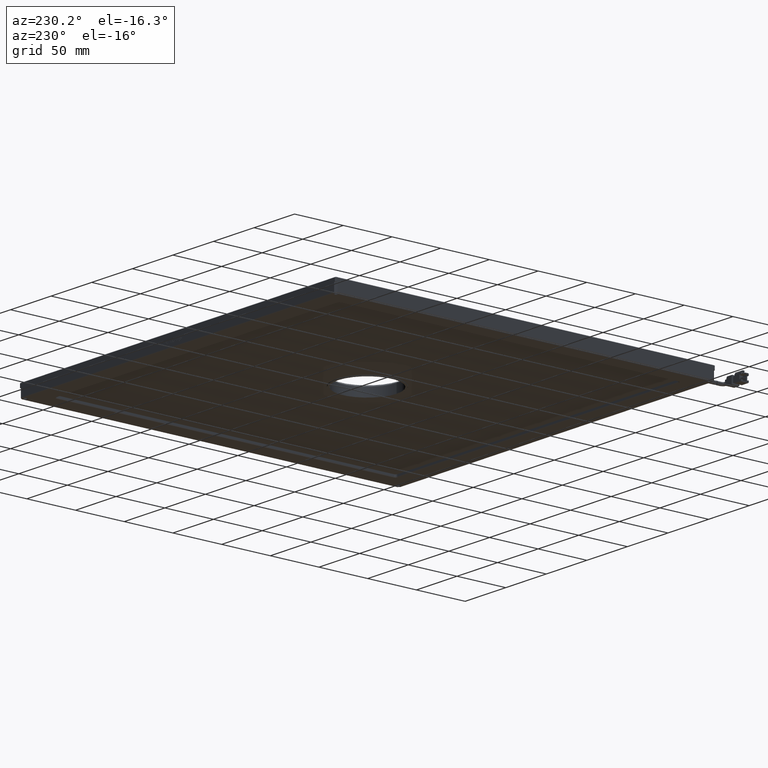
[diagram: clean part render]
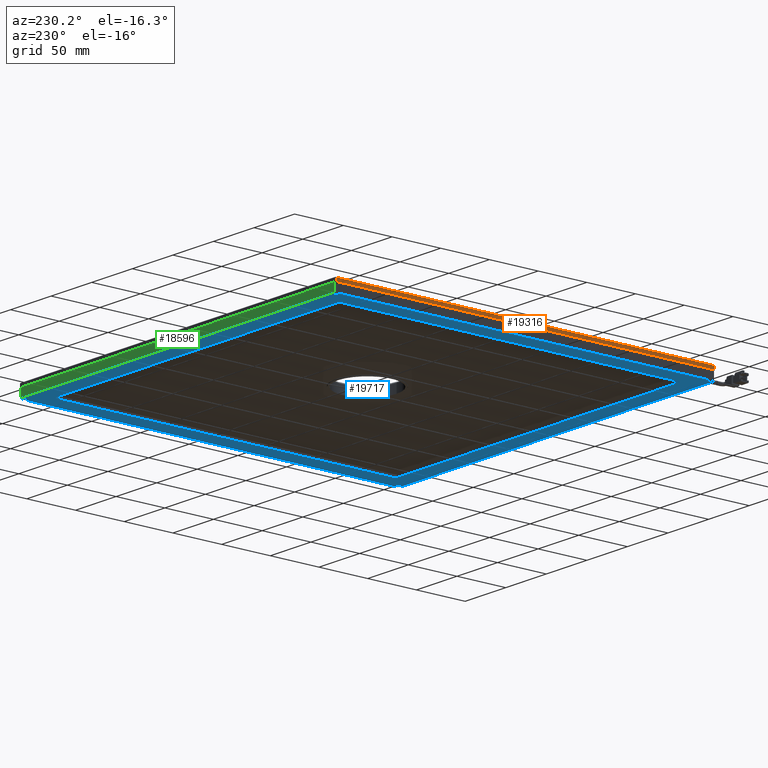
[diagram: same view with three faces highlighted in distinct colors, each labeled with its STEP entity id]
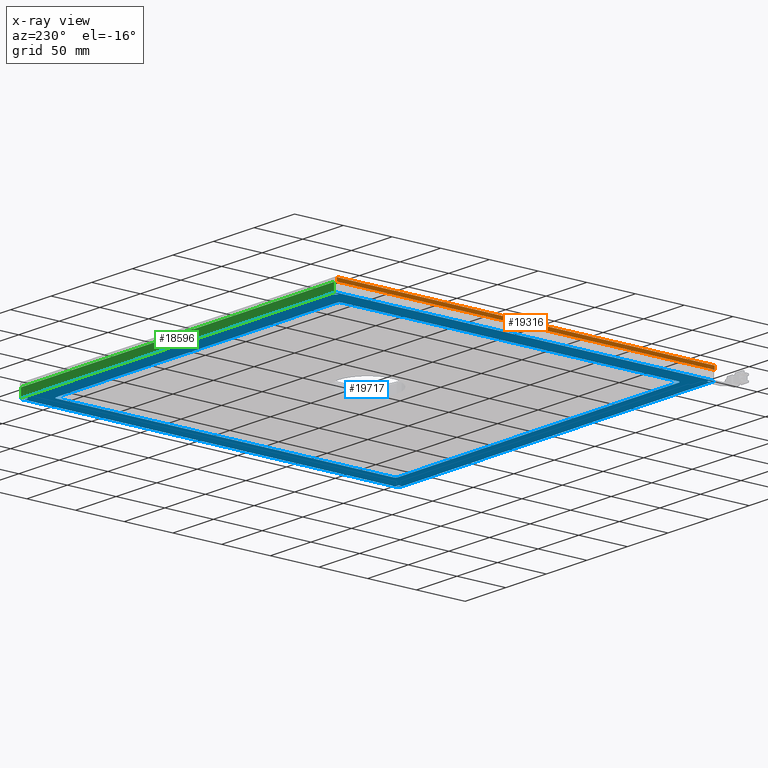
[diagram: x-ray of the same camera — body ghosted, the three highlighted faces saturated]
A machine part, auxiliary view with three faces highlighted in distinct colors.
The next image is the same camera in x-ray (body ghosted, the three faces saturated) — at least one of them is partly hidden behind the body in this view.
Their STEP definitions:

[orange] entity #19316 — the highlighted planar face has unit normal (1, 0, 0).
#330 = CARTESIAN_POINT ( 'NONE',  ( -229.1484017985390300, 214.4229729729717100, 4.249999999999996400 ) ) ;
#470 = LINE ( 'NONE', #17133, #21518 ) ;
#630 = LINE ( 'NONE', #14635, #1174 ) ;
#1174 = VECTOR ( 'NONE', #4507, 1000.000000000000000 ) ;
#1720 = ORIENTED_EDGE ( 'NONE', *, *, #21502, .F. ) ;
#3658 = DIRECTION ( 'NONE',  ( 0.0000000000000000000, -1.000000000000000000, -0.0000000000000000000 ) ) ;
#4266 = CARTESIAN_POINT ( 'NONE',  ( -229.1484017985390300, 214.4229729729717600, 7.749999999999998200 ) ) ;
#4507 = DIRECTION ( 'NONE',  ( -0.0000000000000000000, -0.0000000000000000000, 1.000000000000000000 ) ) ;
#4828 = ORIENTED_EDGE ( 'NONE', *, *, #17012, .F. ) ;
#5744 = VERTEX_POINT ( 'NONE', #4266 ) ;
#6631 = DIRECTION ( 'NONE',  ( -0.0000000000000000000, -1.000000000000000000, -0.0000000000000000000 ) ) ;
#7194 = ORIENTED_EDGE ( 'NONE', *, *, #20709, .T. ) ;
#7900 = CARTESIAN_POINT ( 'NONE',  ( -229.1484017985390000, -173.5770270270283200, 7.749999999999994700 ) ) ;
#8736 = LINE ( 'NONE', #20719, #9259 ) ;
#9259 = VECTOR ( 'NONE', #3658, 1000.000000000000000 ) ;
#9867 = ORIENTED_EDGE ( 'NONE', *, *, #14585, .F. ) ;
#10079 = PLANE ( 'NONE',  #18285 ) ;
#12475 = DIRECTION ( 'NONE',  ( 0.0000000000000000000, 0.0000000000000000000, -1.000000000000000000 ) ) ;
#13417 = CARTESIAN_POINT ( 'NONE',  ( -229.1484017985390300, -173.5770270270282400, 8.249999999999998200 ) ) ;
#13564 = DIRECTION ( 'NONE',  ( 0.0000000000000000000, 0.0000000000000000000, -1.000000000000000000 ) ) ;
#14585 = EDGE_CURVE ( 'NONE', #15648, #18246, #17096, .T. ) ;
#14635 = CARTESIAN_POINT ( 'NONE',  ( -229.1484017985390300, 214.4229729729716800, 8.249999999999998200 ) ) ;
#15292 = FACE_OUTER_BOUND ( 'NONE', #16875, .T. ) ;
#15608 = CARTESIAN_POINT ( 'NONE',  ( -229.1484017985390300, -174.5770270270281200, 8.249999999999998200 ) ) ;
#15648 = VERTEX_POINT ( 'NONE', #7900 ) ;
#15674 = DIRECTION ( 'NONE',  ( 1.000000000000000000, 0.0000000000000000000, 0.0000000000000000000 ) ) ;
#16875 = EDGE_LOOP ( 'NONE', ( #4828, #1720, #7194, #9867 ) ) ;
#17012 = EDGE_CURVE ( 'NONE', #5744, #15648, #8736, .T. ) ;
#17096 = LINE ( 'NONE', #13417, #20809 ) ;
#17133 = CARTESIAN_POINT ( 'NONE',  ( -229.1484017985390800, 215.4229729729718800, 4.249999999999998200 ) ) ;
#17385 = CARTESIAN_POINT ( 'NONE',  ( -229.1484017985390300, -173.5770270270282100, 4.249999999999996400 ) ) ;
#18246 = VERTEX_POINT ( 'NONE', #17385 ) ;
#18285 = AXIS2_PLACEMENT_3D ( 'NONE', #15608, #15674, #12475 ) ;
#19316 = ADVANCED_FACE ( 'NONE', ( #15292 ), #10079, .F. ) ;
#20709 = EDGE_CURVE ( 'NONE', #21471, #18246, #470, .T. ) ;
#20719 = CARTESIAN_POINT ( 'NONE',  ( -229.1484017985390300, -174.5770270270281200, 7.749999999999998200 ) ) ;
#20809 = VECTOR ( 'NONE', #13564, 1000.000000000000000 ) ;
#21471 = VERTEX_POINT ( 'NONE', #330 ) ;
#21502 = EDGE_CURVE ( 'NONE', #21471, #5744, #630, .T. ) ;
#21518 = VECTOR ( 'NONE', #6631, 1000.000000000000000 ) ;

[blue] entity #19717 — the highlighted planar face has unit normal (0, -0, 1).
#177 = ORIENTED_EDGE ( 'NONE', *, *, #843, .F. ) ;
#184 = VERTEX_POINT ( 'NONE', #5096 ) ;
#272 = LINE ( 'NONE', #6922, #14658 ) ;
#277 = CARTESIAN_POINT ( 'NONE',  ( 159.1015982014643000, -171.0770270270250000, -4.750000000000000900 ) ) ;
#399 = VECTOR ( 'NONE', #11221, 1000.000000000000000 ) ;
#655 = DIRECTION ( 'NONE',  ( 1.000000000000000000, 0.0000000000000000000, 0.0000000000000000000 ) ) ;
#702 = EDGE_CURVE ( 'NONE', #7724, #14660, #18241, .T. ) ;
#732 = ORIENTED_EDGE ( 'NONE', *, *, #17986, .F. ) ;
#818 = DIRECTION ( 'NONE',  ( 0.0000000000000000000, 0.0000000000000000000, -1.000000000000000000 ) ) ;
#837 = ORIENTED_EDGE ( 'NONE', *, *, #12302, .F. ) ;
#843 = EDGE_CURVE ( 'NONE', #11440, #8024, #12603, .T. ) ;
#872 = AXIS2_PLACEMENT_3D ( 'NONE', #2316, #2475, #655 ) ;
#952 = AXIS2_PLACEMENT_3D ( 'NONE', #7993, #20066, #19914 ) ;
#989 = DIRECTION ( 'NONE',  ( 0.0000000000000000000, 0.0000000000000000000, -1.000000000000000000 ) ) ;
#1011 = ORIENTED_EDGE ( 'NONE', *, *, #9879, .F. ) ;
#1081 = CIRCLE ( 'NONE', #952, 1.750000000000001600 ) ;
#1108 = CIRCLE ( 'NONE', #4094, 2.499999999995977400 ) ;
#1155 = ORIENTED_EDGE ( 'NONE', *, *, #19653, .F. ) ;
#1313 = ORIENTED_EDGE ( 'NONE', *, *, #17566, .F. ) ;
#1389 = VECTOR ( 'NONE', #3580, 1000.000000000000100 ) ;
#1513 = DIRECTION ( 'NONE',  ( -0.0000000000000000000, -1.000000000000000000, -0.0000000000000000000 ) ) ;
#1575 = EDGE_LOOP ( 'NONE', ( #14887, #18310, #10832, #1155, #4544, #5833, #8947, #732 ) ) ;
#1605 = EDGE_CURVE ( 'NONE', #2016, #11440, #272, .T. ) ;
#1666 = CARTESIAN_POINT ( 'NONE',  ( 155.6015982014623100, 211.9229729729730100, -4.750000000000000900 ) ) ;
#1828 = ORIENTED_EDGE ( 'NONE', *, *, #20392, .F. ) ;
#1957 = CARTESIAN_POINT ( 'NONE',  ( 157.3515982014623100, 211.9229729729730100, -4.750000000000000900 ) ) ;
#2016 = VERTEX_POINT ( 'NONE', #16418 ) ;
#2144 = CARTESIAN_POINT ( 'NONE',  ( -226.9412950173510000, -174.0770270270269900, -4.750000000000015100 ) ) ;
#2316 = CARTESIAN_POINT ( 'NONE',  ( 157.3515982014643000, -171.0770270270250000, -4.750000000000000900 ) ) ;
#2321 = EDGE_CURVE ( 'NONE', #11921, #3655, #9829, .T. ) ;
#2475 = DIRECTION ( 'NONE',  ( 0.0000000000000000000, 0.0000000000000000000, -1.000000000000000000 ) ) ;
#2550 = CARTESIAN_POINT ( 'NONE',  ( -228.6484017985376600, -172.3699202458403800, -4.749999999999997300 ) ) ;
#2614 = CARTESIAN_POINT ( 'NONE',  ( -207.1484017985376900, -152.5770270270270100, -4.750000000056844300 ) ) ;
#2634 = VERTEX_POINT ( 'NONE', #16522 ) ;
#2661 = AXIS2_PLACEMENT_3D ( 'NONE', #19794, #7924, #2862 ) ;
#2862 = DIRECTION ( 'NONE',  ( 1.000000000000000000, 0.0000000000000000000, 0.0000000000000000000 ) ) ;
#2883 = ORIENTED_EDGE ( 'NONE', *, *, #17956, .F. ) ;
#3131 = EDGE_CURVE ( 'NONE', #19140, #15992, #1108, .T. ) ;
#3248 = FACE_BOUND ( 'NONE', #18800, .T. ) ;
#3279 = EDGE_CURVE ( 'NONE', #8024, #20676, #16571, .T. ) ;
#3402 = CARTESIAN_POINT ( 'NONE',  ( -225.6484017985384000, 211.9229729729723600, -4.750000000000000900 ) ) ;
#3526 = CARTESIAN_POINT ( 'NONE',  ( 138.8515982014623700, 193.4229729729730700, -4.749999999943157500 ) ) ;
#3580 = DIRECTION ( 'NONE',  ( 0.7071067811865474600, 0.7071067811865474600, 0.0000000000000000000 ) ) ;
#3610 = ORIENTED_EDGE ( 'NONE', *, *, #2321, .F. ) ;
#3655 = VERTEX_POINT ( 'NONE', #12027 ) ;
#3699 = CARTESIAN_POINT ( 'NONE',  ( -229.1484017985377200, 214.9229729729729600, -4.750000000000000900 ) ) ;
#4094 = AXIS2_PLACEMENT_3D ( 'NONE', #3526, #7171, #8663 ) ;
#4431 = DIRECTION ( 'NONE',  ( 1.000000000000000000, 0.0000000000000000000, -0.0000000000000000000 ) ) ;
#4544 = ORIENTED_EDGE ( 'NONE', *, *, #18720, .F. ) ;
#4703 = EDGE_CURVE ( 'NONE', #3655, #11921, #8442, .T. ) ;
#4711 = PLANE ( 'NONE',  #19362 ) ;
#4794 = CARTESIAN_POINT ( 'NONE',  ( -223.8984017985376900, -171.0770270270269900, -4.750000000000000900 ) ) ;
#4913 = LINE ( 'NONE', #11763, #17463 ) ;
#5034 = ORIENTED_EDGE ( 'NONE', *, *, #4703, .F. ) ;
#5096 = CARTESIAN_POINT ( 'NONE',  ( -228.6484017985376600, 213.2158661917865200, -4.750000000000002700 ) ) ;
#5197 = DIRECTION ( 'NONE',  ( 1.000000000000000000, 0.0000000000000000000, 0.0000000000000000000 ) ) ;
#5276 = CARTESIAN_POINT ( 'NONE',  ( 158.6444914202759000, -174.0770270270268700, -4.750000000000000900 ) ) ;
#5794 = VERTEX_POINT ( 'NONE', #12766 ) ;
#5833 = ORIENTED_EDGE ( 'NONE', *, *, #17733, .F. ) ;
#5838 = EDGE_CURVE ( 'NONE', #17004, #20976, #1081, .T. ) ;
#5952 = VERTEX_POINT ( 'NONE', #20507 ) ;
#6224 = AXIS2_PLACEMENT_3D ( 'NONE', #7914, #989, #16324 ) ;
#6585 = ORIENTED_EDGE ( 'NONE', *, *, #3131, .F. ) ;
#6644 = DIRECTION ( 'NONE',  ( 1.000000000000000000, 0.0000000000000000000, -0.0000000000000000000 ) ) ;
#6740 = DIRECTION ( 'NONE',  ( 0.0000000000000000000, 0.0000000000000000000, -1.000000000000000000 ) ) ;
#6757 = CARTESIAN_POINT ( 'NONE',  ( -227.3984017985377200, -171.0770270270269900, -4.750000000000000900 ) ) ;
#6797 = CARTESIAN_POINT ( 'NONE',  ( 160.3515982014622500, -172.3699202458405200, -4.750000000000000900 ) ) ;
#6922 = CARTESIAN_POINT ( 'NONE',  ( -229.1484017985377200, -155.0770270270269600, -4.750000000000000900 ) ) ;
#7022 = CARTESIAN_POINT ( 'NONE',  ( -207.1484017985376900, -155.0770270270399500, -4.750000000014211700 ) ) ;
#7129 = ORIENTED_EDGE ( 'NONE', *, *, #3279, .F. ) ;
#7158 = CIRCLE ( 'NONE', #18463, 1.750000000000001600 ) ;
#7171 = DIRECTION ( 'NONE',  ( 0.0000000000000000000, 0.0000000000000000000, -1.000000000000000000 ) ) ;
#7244 = LINE ( 'NONE', #18512, #7780 ) ;
#7297 = CARTESIAN_POINT ( 'NONE',  ( -209.6484017985376600, 215.4229729729729600, -4.750000000000000900 ) ) ;
#7658 = VERTEX_POINT ( 'NONE', #11887 ) ;
#7724 = VERTEX_POINT ( 'NONE', #8752 ) ;
#7780 = VECTOR ( 'NONE', #1513, 1000.000000000000000 ) ;
#7829 = ORIENTED_EDGE ( 'NONE', *, *, #5838, .F. ) ;
#7848 = CIRCLE ( 'NONE', #6224, 2.499999999995977400 ) ;
#7914 = CARTESIAN_POINT ( 'NONE',  ( 138.8515982014623700, -152.5770270270270100, -4.750000000056844300 ) ) ;
#7924 = DIRECTION ( 'NONE',  ( 0.0000000000000000000, 0.0000000000000000000, -1.000000000000000000 ) ) ;
#7993 = CARTESIAN_POINT ( 'NONE',  ( -225.6484017985384000, 211.9229729729723600, -4.750000000000000900 ) ) ;
#8024 = VERTEX_POINT ( 'NONE', #21234 ) ;
#8110 = VERTEX_POINT ( 'NONE', #4794 ) ;
#8146 = DIRECTION ( 'NONE',  ( 0.0000000000000000000, 0.0000000000000000000, -1.000000000000000000 ) ) ;
#8335 = DIRECTION ( 'NONE',  ( 0.0000000000000000000, 0.0000000000000000000, -1.000000000000000000 ) ) ;
#8342 = VECTOR ( 'NONE', #8748, 1000.000000000000100 ) ;
#8378 = ORIENTED_EDGE ( 'NONE', *, *, #702, .F. ) ;
#8442 = CIRCLE ( 'NONE', #20749, 1.750000000000001600 ) ;
#8663 = DIRECTION ( 'NONE',  ( -1.000000000000000000, 0.0000000000000000000, 0.0000000000000000000 ) ) ;
#8694 = DIRECTION ( 'NONE',  ( -1.000000000000000000, -0.0000000000000000000, 0.0000000000000000000 ) ) ;
#8748 = DIRECTION ( 'NONE',  ( -0.7071067811865474600, 0.7071067811865474600, 0.0000000000000000000 ) ) ;
#8752 = CARTESIAN_POINT ( 'NONE',  ( 155.6015982014643000, -171.0770270270250000, -4.750000000000000900 ) ) ;
#8925 = CARTESIAN_POINT ( 'NONE',  ( 158.6444914202759000, -174.0770270270269300, -4.750000000000000900 ) ) ;
#8947 = ORIENTED_EDGE ( 'NONE', *, *, #13696, .F. ) ;
#9130 = ORIENTED_EDGE ( 'NONE', *, *, #1605, .F. ) ;
#9195 = DIRECTION ( 'NONE',  ( -1.000000000000000000, -0.0000000000000000000, 0.0000000000000000000 ) ) ;
#9275 = AXIS2_PLACEMENT_3D ( 'NONE', #2614, #19536, #9287 ) ;
#9287 = DIRECTION ( 'NONE',  ( -1.000000000000000000, 0.0000000000000000000, 0.0000000000000000000 ) ) ;
#9348 = VERTEX_POINT ( 'NONE', #2144 ) ;
#9460 = LINE ( 'NONE', #11056, #399 ) ;
#9760 = VERTEX_POINT ( 'NONE', #6797 ) ;
#9829 = CIRCLE ( 'NONE', #21026, 1.750000000000001600 ) ;
#9855 = EDGE_CURVE ( 'NONE', #12219, #9348, #21047, .T. ) ;
#9879 = EDGE_CURVE ( 'NONE', #5952, #19140, #20012, .T. ) ;
#9932 = CARTESIAN_POINT ( 'NONE',  ( 157.3515982014623100, 211.9229729729730100, -4.750000000000000900 ) ) ;
#10022 = DIRECTION ( 'NONE',  ( 0.0000000000000000000, 1.000000000000000000, 0.0000000000000000000 ) ) ;
#10054 = DIRECTION ( 'NONE',  ( 0.0000000000000000000, -0.0000000000000000000, 1.000000000000000000 ) ) ;
#10148 = FACE_BOUND ( 'NONE', #14858, .T. ) ;
#10396 = VECTOR ( 'NONE', #12021, 1000.000000000000100 ) ;
#10421 = DIRECTION ( 'NONE',  ( 0.0000000000000000000, 0.0000000000000000000, -1.000000000000000000 ) ) ;
#10467 = LINE ( 'NONE', #20804, #8342 ) ;
#10642 = AXIS2_PLACEMENT_3D ( 'NONE', #18687, #6740, #20383 ) ;
#10832 = ORIENTED_EDGE ( 'NONE', *, *, #9855, .F. ) ;
#10854 = EDGE_LOOP ( 'NONE', ( #5034, #3610 ) ) ;
#10924 = VECTOR ( 'NONE', #20662, 1000.000000000000000 ) ;
#11056 = CARTESIAN_POINT ( 'NONE',  ( 141.3515982014623400, 215.4229729729729600, -4.750000000000000900 ) ) ;
#11167 = VECTOR ( 'NONE', #4431, 1000.000000000000000 ) ;
#11221 = DIRECTION ( 'NONE',  ( -0.0000000000000000000, -1.000000000000000000, -0.0000000000000000000 ) ) ;
#11276 = EDGE_CURVE ( 'NONE', #20676, #5952, #15627, .T. ) ;
#11440 = VERTEX_POINT ( 'NONE', #7022 ) ;
#11722 = EDGE_CURVE ( 'NONE', #16737, #2016, #7848, .T. ) ;
#11763 = CARTESIAN_POINT ( 'NONE',  ( -226.9412950173511900, 214.9229729729729000, -4.750000000000000900 ) ) ;
#11832 = DIRECTION ( 'NONE',  ( 1.000000000000000000, 0.0000000000000000000, 0.0000000000000000000 ) ) ;
#11887 = CARTESIAN_POINT ( 'NONE',  ( -226.9412950173511900, 214.9229729729729000, -4.750000000000000900 ) ) ;
#11921 = VERTEX_POINT ( 'NONE', #1666 ) ;
#12021 = DIRECTION ( 'NONE',  ( 0.7071067811865647800, -0.7071067811865302500, 0.0000000000000000000 ) ) ;
#12027 = CARTESIAN_POINT ( 'NONE',  ( 159.1015982014623100, 211.9229729729730100, -4.750000000000000900 ) ) ;
#12157 = VERTEX_POINT ( 'NONE', #8925 ) ;
#12219 = VERTEX_POINT ( 'NONE', #2550 ) ;
#12302 = EDGE_CURVE ( 'NONE', #14660, #7724, #19172, .T. ) ;
#12423 = CARTESIAN_POINT ( 'NONE',  ( -227.3984017985384000, 211.9229729729723600, -4.750000000000000900 ) ) ;
#12603 = CIRCLE ( 'NONE', #9275, 2.500000000056401600 ) ;
#12734 = DIRECTION ( 'NONE',  ( 1.000000000000000000, 0.0000000000000000000, 0.0000000000000000000 ) ) ;
#12766 = CARTESIAN_POINT ( 'NONE',  ( 158.6444914202758400, 214.9229729729729300, -4.750000000000014200 ) ) ;
#12786 = AXIS2_PLACEMENT_3D ( 'NONE', #21197, #818, #12734 ) ;
#13010 = CARTESIAN_POINT ( 'NONE',  ( 138.8515982014623700, 195.9229729730003600, -4.749999999943157500 ) ) ;
#13408 = FACE_BOUND ( 'NONE', #14087, .T. ) ;
#13482 = EDGE_LOOP ( 'NONE', ( #21293, #1313 ) ) ;
#13696 = EDGE_CURVE ( 'NONE', #2634, #5794, #10467, .T. ) ;
#13754 = CARTESIAN_POINT ( 'NONE',  ( -223.8984017985384000, 211.9229729729723600, -4.750000000000000900 ) ) ;
#14023 = CARTESIAN_POINT ( 'NONE',  ( 141.3515982014339200, 193.4229729729730700, -4.749999999971575600 ) ) ;
#14087 = EDGE_LOOP ( 'NONE', ( #7829, #1828 ) ) ;
#14293 = LINE ( 'NONE', #3699, #19896 ) ;
#14561 = CARTESIAN_POINT ( 'NONE',  ( -229.1484017985377200, -174.0770270270269900, -4.750000000000000900 ) ) ;
#14580 = ORIENTED_EDGE ( 'NONE', *, *, #11722, .F. ) ;
#14658 = VECTOR ( 'NONE', #8694, 1000.000000000000000 ) ;
#14660 = VERTEX_POINT ( 'NONE', #277 ) ;
#14858 = EDGE_LOOP ( 'NONE', ( #837, #8378 ) ) ;
#14887 = ORIENTED_EDGE ( 'NONE', *, *, #19824, .F. ) ;
#14990 = EDGE_CURVE ( 'NONE', #9348, #12157, #16771, .T. ) ;
#15517 = FACE_OUTER_BOUND ( 'NONE', #1575, .T. ) ;
#15599 = ORIENTED_EDGE ( 'NONE', *, *, #11276, .F. ) ;
#15627 = CIRCLE ( 'NONE', #10642, 2.499999999999558100 ) ;
#15664 = CARTESIAN_POINT ( 'NONE',  ( -229.1484017985377200, 195.9229729729730700, -4.750000000000000900 ) ) ;
#15764 = FACE_BOUND ( 'NONE', #13482, .T. ) ;
#15866 = DIRECTION ( 'NONE',  ( 0.0000000000000000000, 1.000000000000000000, 0.0000000000000000000 ) ) ;
#15992 = VERTEX_POINT ( 'NONE', #14023 ) ;
#16311 = FACE_BOUND ( 'NONE', #10854, .T. ) ;
#16324 = DIRECTION ( 'NONE',  ( -1.000000000000000000, 0.0000000000000000000, 0.0000000000000000000 ) ) ;
#16418 = CARTESIAN_POINT ( 'NONE',  ( 138.8515982014623900, -155.0770270270553800, -4.750000000028419000 ) ) ;
#16522 = CARTESIAN_POINT ( 'NONE',  ( 160.3515982014623100, 213.2158661917865200, -4.750000000000006200 ) ) ;
#16571 = LINE ( 'NONE', #7297, #20806 ) ;
#16737 = VERTEX_POINT ( 'NONE', #19862 ) ;
#16771 = LINE ( 'NONE', #14561, #11167 ) ;
#16790 = DIRECTION ( 'NONE',  ( 1.000000000000000000, 0.0000000000000000000, 0.0000000000000000000 ) ) ;
#16839 = EDGE_CURVE ( 'NONE', #8110, #20398, #21810, .T. ) ;
#16916 = LINE ( 'NONE', #20471, #20887 ) ;
#16972 = DIRECTION ( 'NONE',  ( -0.7071067811865532300, -0.7071067811865416900, 0.0000000000000000000 ) ) ;
#17004 = VERTEX_POINT ( 'NONE', #13754 ) ;
#17463 = VECTOR ( 'NONE', #16972, 1000.000000000000100 ) ;
#17566 = EDGE_CURVE ( 'NONE', #20398, #8110, #18860, .T. ) ;
#17640 = LINE ( 'NONE', #5276, #1389 ) ;
#17733 = EDGE_CURVE ( 'NONE', #5794, #7658, #14293, .T. ) ;
#17956 = EDGE_CURVE ( 'NONE', #15992, #16737, #9460, .T. ) ;
#17986 = EDGE_CURVE ( 'NONE', #9760, #2634, #16916, .T. ) ;
#18241 = CIRCLE ( 'NONE', #872, 1.750000000000001600 ) ;
#18310 = ORIENTED_EDGE ( 'NONE', *, *, #14990, .F. ) ;
#18463 = AXIS2_PLACEMENT_3D ( 'NONE', #3402, #8335, #20406 ) ;
#18512 = CARTESIAN_POINT ( 'NONE',  ( -228.6484017985376600, 215.4229729729729600, -4.750000000000000900 ) ) ;
#18687 = CARTESIAN_POINT ( 'NONE',  ( -207.1484017985376900, 193.4229729729730700, -4.750000000000000900 ) ) ;
#18720 = EDGE_CURVE ( 'NONE', #7658, #184, #4913, .T. ) ;
#18786 = DIRECTION ( 'NONE',  ( 0.0000000000000000000, 0.0000000000000000000, -1.000000000000000000 ) ) ;
#18800 = EDGE_LOOP ( 'NONE', ( #7129, #177, #9130, #14580, #2883, #6585, #1011, #15599 ) ) ;
#18860 = CIRCLE ( 'NONE', #20368, 1.750000000000001600 ) ;
#19112 = CARTESIAN_POINT ( 'NONE',  ( -228.6484017985376600, -172.3699202458403500, -4.750000000000000900 ) ) ;
#19140 = VERTEX_POINT ( 'NONE', #13010 ) ;
#19172 = CIRCLE ( 'NONE', #12786, 1.750000000000001600 ) ;
#19362 = AXIS2_PLACEMENT_3D ( 'NONE', #20132, #10054, #6644 ) ;
#19536 = DIRECTION ( 'NONE',  ( 0.0000000000000000000, 0.0000000000000000000, -1.000000000000000000 ) ) ;
#19558 = CARTESIAN_POINT ( 'NONE',  ( -209.6484017985365300, 193.4229729729730700, -4.750000000000000900 ) ) ;
#19653 = EDGE_CURVE ( 'NONE', #184, #12219, #7244, .T. ) ;
#19717 = ADVANCED_FACE ( 'NONE', ( #15517, #3248, #16311, #13408, #15764, #10148 ), #4711, .F. ) ;
#19794 = CARTESIAN_POINT ( 'NONE',  ( -225.6484017985377200, -171.0770270270269900, -4.750000000000000900 ) ) ;
#19824 = EDGE_CURVE ( 'NONE', #12157, #9760, #17640, .T. ) ;
#19862 = CARTESIAN_POINT ( 'NONE',  ( 141.3515982014480100, -152.5770270270270100, -4.750000000014211700 ) ) ;
#19896 = VECTOR ( 'NONE', #9195, 1000.000000000000000 ) ;
#19914 = DIRECTION ( 'NONE',  ( 1.000000000000000000, 0.0000000000000000000, 0.0000000000000000000 ) ) ;
#20012 = LINE ( 'NONE', #15664, #10924 ) ;
#20066 = DIRECTION ( 'NONE',  ( 0.0000000000000000000, 0.0000000000000000000, -1.000000000000000000 ) ) ;
#20132 = CARTESIAN_POINT ( 'NONE',  ( -229.1484017985377200, 215.4229729729729600, -4.750000000000000900 ) ) ;
#20368 = AXIS2_PLACEMENT_3D ( 'NONE', #21888, #18786, #11832 ) ;
#20383 = DIRECTION ( 'NONE',  ( -1.000000000000000000, 0.0000000000000000000, 0.0000000000000000000 ) ) ;
#20392 = EDGE_CURVE ( 'NONE', #20976, #17004, #7158, .T. ) ;
#20398 = VERTEX_POINT ( 'NONE', #6757 ) ;
#20406 = DIRECTION ( 'NONE',  ( 1.000000000000000000, 0.0000000000000000000, 0.0000000000000000000 ) ) ;
#20471 = CARTESIAN_POINT ( 'NONE',  ( 160.3515982014622500, 215.4229729729729600, -4.750000000000000900 ) ) ;
#20507 = CARTESIAN_POINT ( 'NONE',  ( -207.1484017985376900, 195.9229729729719300, -4.750000000000000900 ) ) ;
#20662 = DIRECTION ( 'NONE',  ( 1.000000000000000000, 0.0000000000000000000, -0.0000000000000000000 ) ) ;
#20676 = VERTEX_POINT ( 'NONE', #19558 ) ;
#20749 = AXIS2_PLACEMENT_3D ( 'NONE', #9932, #8146, #16790 ) ;
#20804 = CARTESIAN_POINT ( 'NONE',  ( 160.3515982014622500, 213.2158661917865200, -4.750000000000000900 ) ) ;
#20806 = VECTOR ( 'NONE', #15866, 1000.000000000000000 ) ;
#20887 = VECTOR ( 'NONE', #10022, 1000.000000000000000 ) ;
#20976 = VERTEX_POINT ( 'NONE', #12423 ) ;
#21026 = AXIS2_PLACEMENT_3D ( 'NONE', #1957, #10421, #5197 ) ;
#21047 = LINE ( 'NONE', #19112, #10396 ) ;
#21197 = CARTESIAN_POINT ( 'NONE',  ( 157.3515982014643000, -171.0770270270250000, -4.750000000000000900 ) ) ;
#21234 = CARTESIAN_POINT ( 'NONE',  ( -209.6484017985660800, -152.5770270270270100, -4.750000000028422600 ) ) ;
#21293 = ORIENTED_EDGE ( 'NONE', *, *, #16839, .F. ) ;
#21810 = CIRCLE ( 'NONE', #2661, 1.750000000000001600 ) ;
#21888 = CARTESIAN_POINT ( 'NONE',  ( -225.6484017985377200, -171.0770270270269900, -4.750000000000000900 ) ) ;

[green] entity #18596 — the highlighted planar face has unit normal (0, -1, 0).
#22 = CARTESIAN_POINT ( 'NONE',  ( -21.50677754429794700, 215.4229729729729900, 0.7078922098057993700 ) ) ;
#33 = B_SPLINE_CURVE_WITH_KNOTS ( 'NONE', 3,
 ( #14694, #6204, #9322, #4261 ),
 .UNSPECIFIED., .F., .F.,
 ( 4, 4 ),
 ( 1.000000000000000000, 2.000000000000000000 ),
 .UNSPECIFIED. ) ;
#71 = VECTOR ( 'NONE', #20354, 1000.000000000000000 ) ;
#75 = CARTESIAN_POINT ( 'NONE',  ( -23.39098522412505700, 215.4229729729729900, 0.3520782563174174000 ) ) ;
#80 = DIRECTION ( 'NONE',  ( -0.0000000000000000000, -0.0000000000000000000, 1.000000000000000000 ) ) ;
#143 = VERTEX_POINT ( 'NONE', #1484 ) ;
#150 = CARTESIAN_POINT ( 'NONE',  ( -24.39660988610440000, 215.4229729729729900, -0.4642008134500275100 ) ) ;
#214 = VECTOR ( 'NONE', #3517, 1000.000000000000000 ) ;
#234 = DIRECTION ( 'NONE',  ( 1.000000000000000000, -0.0000000000000000000, -0.0000000000000000000 ) ) ;
#262 = EDGE_CURVE ( 'NONE', #3302, #7799, #16404, .T. ) ;
#289 = CARTESIAN_POINT ( 'NONE',  ( -35.02825537014994900, 215.4229729729729900, 1.175384773353660400 ) ) ;
#295 = VECTOR ( 'NONE', #17456, 1000.000000000000000 ) ;
#323 = B_SPLINE_CURVE_WITH_KNOTS ( 'NONE', 3,
 ( #3787, #15929, #20834, #12355 ),
 .UNSPECIFIED., .F., .F.,
 ( 4, 4 ),
 ( 8.000000000000000000, 9.000000000000000000 ),
 .UNSPECIFIED. ) ;
#365 = ORIENTED_EDGE ( 'NONE', *, *, #19143, .F. ) ;
#383 = EDGE_CURVE ( 'NONE', #21576, #143, #10297, .T. ) ;
#395 = CARTESIAN_POINT ( 'NONE',  ( -39.61561569222257600, 215.4229729729729900, -0.6406999872131669000 ) ) ;
#455 = ORIENTED_EDGE ( 'NONE', *, *, #14686, .F. ) ;
#471 = ORIENTED_EDGE ( 'NONE', *, *, #7609, .F. ) ;
#492 = CARTESIAN_POINT ( 'NONE',  ( -21.50677754429794700, 215.4229729729729900, 1.136961977247663600 ) ) ;
#610 = B_SPLINE_CURVE_WITH_KNOTS ( 'NONE', 3,
 ( #19625, #14530, #12668, #14402 ),
 .UNSPECIFIED., .F., .F.,
 ( 4, 4 ),
 ( 3.000000000000000000, 4.000000000000000000 ),
 .UNSPECIFIED. ) ;
#635 = CARTESIAN_POINT ( 'NONE',  ( -24.12323914516326400, 215.4229729729729900, -0.7781543018220982200 ) ) ;
#639 = CARTESIAN_POINT ( 'NONE',  ( -21.98196683580702900, 215.4229729729729900, 1.513706163294159500 ) ) ;
#700 = ORIENTED_EDGE ( 'NONE', *, *, #10748, .F. ) ;
#728 = ORIENTED_EDGE ( 'NONE', *, *, #17074, .F. ) ;
#742 = LINE ( 'NONE', #7082, #214 ) ;
#789 = ORIENTED_EDGE ( 'NONE', *, *, #6404, .F. ) ;
#886 = EDGE_CURVE ( 'NONE', #16513, #6850, #9640, .T. ) ;
#893 = B_SPLINE_CURVE_WITH_KNOTS ( 'NONE', 3,
 ( #13591, #6428, #21744, #18439 ),
 .UNSPECIFIED., .F., .F.,
 ( 4, 4 ),
 ( 5.000000000000000000, 6.000000000000000000 ),
 .UNSPECIFIED. ) ;
#933 = VECTOR ( 'NONE', #11199, 1000.000000000000000 ) ;
#961 = CARTESIAN_POINT ( 'NONE',  ( -23.39098522412505700, 215.4229729729729900, 0.3520782563174174000 ) ) ;
#967 = VERTEX_POINT ( 'NONE', #18629 ) ;
#968 = DIRECTION ( 'NONE',  ( -1.000000000000000000, -0.0000000000000000000, -0.0000000000000000000 ) ) ;
#1031 = ORIENTED_EDGE ( 'NONE', *, *, #21678, .F. ) ;
#1041 = CARTESIAN_POINT ( 'NONE',  ( 158.8515982014623100, 215.4229729729730100, 4.250000000000000000 ) ) ;
#1042 = ORIENTED_EDGE ( 'NONE', *, *, #18157, .F. ) ;
#1122 = CARTESIAN_POINT ( 'NONE',  ( -20.70303227658574100, 215.4229729729729900, 1.534636395852301300 ) ) ;
#1128 = VECTOR ( 'NONE', #12173, 1000.000000000000000 ) ;
#1146 = DIRECTION ( 'NONE',  ( -1.000000000000000000, -0.0000000000000000000, -0.0000000000000000000 ) ) ;
#1268 = CARTESIAN_POINT ( 'NONE',  ( -32.94880025927906800, 215.4229729729729900, 0.6346363958523171300 ) ) ;
#1297 = CARTESIAN_POINT ( 'NONE',  ( -19.74626510514163500, 215.4229729729729900, 1.513706163294159500 ) ) ;
#1316 = CARTESIAN_POINT ( 'NONE',  ( -22.25850144911132100, 215.4229729729729900, 1.210217791201145800 ) ) ;
#1331 = DIRECTION ( 'NONE',  ( -1.000000000000000000, -0.0000000000000000000, -0.0000000000000000000 ) ) ;
#1335 = ORIENTED_EDGE ( 'NONE', *, *, #12922, .F. ) ;
#1353 = CARTESIAN_POINT ( 'NONE',  ( -19.46632324467665100, 215.4229729729729900, 0.8439387214337068500 ) ) ;
#1374 = LINE ( 'NONE', #22, #20290 ) ;
#1395 = LINE ( 'NONE', #2625, #14443 ) ;
#1438 = EDGE_CURVE ( 'NONE', #11227, #10665, #14054, .T. ) ;
#1452 = DIRECTION ( 'NONE',  ( 1.000000000000000000, -0.0000000000000000000, -0.0000000000000000000 ) ) ;
#1481 = CARTESIAN_POINT ( 'NONE',  ( -34.78421129226974500, 215.4229729729729900, 0.4881247679453248900 ) ) ;
#1484 = CARTESIAN_POINT ( 'NONE',  ( -20.69646115706161600, 215.4229729729729900, -0.1921077901942125400 ) ) ;
#1509 = VERTEX_POINT ( 'NONE', #7058 ) ;
#1548 = CARTESIAN_POINT ( 'NONE',  ( -26.46967640854900200, 215.4229729729729900, -0.5338668491449982700 ) ) ;
#1567 = CARTESIAN_POINT ( 'NONE',  ( -31.99203308783507500, 215.4229729729729900, 0.6346363958523171300 ) ) ;
#1576 = EDGE_CURVE ( 'NONE', #8213, #13852, #3457, .T. ) ;
#1618 = B_SPLINE_CURVE_WITH_KNOTS ( 'NONE', 3,
 ( #16820, #10099, #18550, #20402 ),
 .UNSPECIFIED., .F., .F.,
 ( 4, 4 ),
 ( 6.000000000000000000, 7.000000000000000000 ),
 .UNSPECIFIED. ) ;
#1626 = CARTESIAN_POINT ( 'NONE',  ( -19.97400307160998900, 215.4229729729729900, -0.1083868599616455400 ) ) ;
#1629 = CARTESIAN_POINT ( 'NONE',  ( -22.35615558648299500, 215.4229729729729900, -0.4851310460081692500 ) ) ;
#1772 = CARTESIAN_POINT ( 'NONE',  ( -33.41741843126391800, 215.4229729729729900, 0.5195201167825236300 ) ) ;
#1781 = CARTESIAN_POINT ( 'NONE',  ( -30.49515639773229100, 215.4229729729729900, -0.3909449994965452600 ) ) ;
#1821 = CARTESIAN_POINT ( 'NONE',  ( -35.25282946425487300, 215.4229729729729900, 0.3520782563174174000 ) ) ;
#1856 = ORIENTED_EDGE ( 'NONE', *, *, #11157, .F. ) ;
#1867 = DIRECTION ( 'NONE',  ( 1.000000000000000000, -0.0000000000000000000, -0.0000000000000000000 ) ) ;
#1907 = EDGE_CURVE ( 'NONE', #8104, #12169, #1618, .T. ) ;
#1914 = B_SPLINE_CURVE_WITH_KNOTS ( 'NONE', 3,
 ( #1353, #10115, #13273, #14985 ),
 .UNSPECIFIED., .F., .F.,
 ( 4, 4 ),
 ( 11.00000000000000000, 12.00000000000000000 ),
 .UNSPECIFIED. ) ;
#1935 = B_SPLINE_CURVE_WITH_KNOTS ( 'NONE', 3,
 ( #3638, #15568, #17370, #10634 ),
 .UNSPECIFIED., .F., .F.,
 ( 4, 4 ),
 ( 5.000000000000000000, 6.000000000000000000 ),
 .UNSPECIFIED. ) ;
#1972 = CARTESIAN_POINT ( 'NONE',  ( -39.61561569222257600, 215.4229729729729900, 1.368972925016864700 ) ) ;
#2060 = CARTESIAN_POINT ( 'NONE',  ( -33.12451686284848100, 215.4229729729729900, 1.534636395852301300 ) ) ;
#2074 = VERTEX_POINT ( 'NONE', #8170 ) ;
#2118 = ORIENTED_EDGE ( 'NONE', *, *, #6996, .F. ) ;
#2146 = CARTESIAN_POINT ( 'NONE',  ( -27.23758473737539600, 215.4229729729729900, 0.6869619772476576200 ) ) ;
#2295 = VERTEX_POINT ( 'NONE', #5057 ) ;
#2304 = CARTESIAN_POINT ( 'NONE',  ( -30.49515639773229100, 215.4229729729729900, 1.088226174110806800 ) ) ;
#2323 = CARTESIAN_POINT ( 'NONE',  ( -28.14549441828393100, 215.4229729729729900, -0.7781543018220982200 ) ) ;
#2421 = ORIENTED_EDGE ( 'NONE', *, *, #3066, .F. ) ;
#2437 = EDGE_CURVE ( 'NONE', #16541, #11994, #323, .T. ) ;
#2484 = CARTESIAN_POINT ( 'NONE',  ( -23.35849468870035800, 215.4229729729729900, 1.091663843121093400 ) ) ;
#2557 = DIRECTION ( 'NONE',  ( -0.0000000000000000000, -0.0000000000000000000, -1.000000000000000000 ) ) ;
#2597 = VERTEX_POINT ( 'NONE', #14883 ) ;
#2625 = CARTESIAN_POINT ( 'NONE',  ( -39.00380568337389100, 215.4229729729729900, -1.374824313800371300 ) ) ;
#2628 = VERTEX_POINT ( 'NONE', #18175 ) ;
#2659 = CARTESIAN_POINT ( 'NONE',  ( -24.12323914516326400, 215.4229729729729900, 1.471845698177876000 ) ) ;
#2716 = ORIENTED_EDGE ( 'NONE', *, *, #5573, .F. ) ;
#2727 = EDGE_CURVE ( 'NONE', #8575, #5393, #19055, .T. ) ;
#2807 = ORIENTED_EDGE ( 'NONE', *, *, #16547, .F. ) ;
#2838 = CARTESIAN_POINT ( 'NONE',  ( -34.21793898291350200, 215.4229729729729900, -0.1502473250779290400 ) ) ;
#2844 = EDGE_CURVE ( 'NONE', #10584, #8432, #33, .T. ) ;
#2904 = VERTEX_POINT ( 'NONE', #20065 ) ;
#2907 = VERTEX_POINT ( 'NONE', #20285 ) ;
#2910 = ORIENTED_EDGE ( 'NONE', *, *, #2437, .F. ) ;
#2917 = CARTESIAN_POINT ( 'NONE',  ( -32.78938976712112200, 215.4229729729729900, 1.210217791201145800 ) ) ;
#2942 = EDGE_CURVE ( 'NONE', #2295, #14622, #19827, .T. ) ;
#2972 = LINE ( 'NONE', #2323, #295 ) ;
#2974 = CARTESIAN_POINT ( 'NONE',  ( -25.55835948047966300, 215.4229729729729900, -0.4642008134500275100 ) ) ;
#3010 = VECTOR ( 'NONE', #80, 1000.000000000000000 ) ;
#3066 = EDGE_CURVE ( 'NONE', #16178, #8704, #12330, .T. ) ;
#3098 = CARTESIAN_POINT ( 'NONE',  ( -22.25850144911132100, 215.4229729729729900, 1.210217791201145800 ) ) ;
#3103 = EDGE_CURVE ( 'NONE', #20808, #19066, #6591, .T. ) ;
#3104 = CARTESIAN_POINT ( 'NONE',  ( -22.91263206025254500, 215.4229729729729900, 0.3730084888755591500 ) ) ;
#3147 = VERTEX_POINT ( 'NONE', #13434 ) ;
#3182 = ORIENTED_EDGE ( 'NONE', *, *, #18017, .F. ) ;
#3245 = CARTESIAN_POINT ( 'NONE',  ( -33.87307689529853100, 215.4229729729729900, -0.5897822087988502400 ) ) ;
#3294 = ORIENTED_EDGE ( 'NONE', *, *, #14461, .F. ) ;
#3297 = CARTESIAN_POINT ( 'NONE',  ( -21.45792005376265600, 215.4229729729729900, -0.06652639484538980200 ) ) ;
#3302 = VERTEX_POINT ( 'NONE', #10796 ) ;
#3304 = B_SPLINE_CURVE_WITH_KNOTS ( 'NONE', 3,
 ( #18693, #1548, #13544, #8325 ),
 .UNSPECIFIED., .F., .F.,
 ( 4, 4 ),
 ( 5.000000000000000000, 6.000000000000000000 ),
 .UNSPECIFIED. ) ;
#3318 = EDGE_CURVE ( 'NONE', #11204, #13215, #2972, .T. ) ;
#3321 = DIRECTION ( 'NONE',  ( -0.0000000000000000000, -0.0000000000000000000, -1.000000000000000000 ) ) ;
#3333 = LINE ( 'NONE', #6317, #7321 ) ;
#3392 = CARTESIAN_POINT ( 'NONE',  ( -20.69646115706161600, 215.4229729729729900, -0.1921077901942125400 ) ) ;
#3394 = VECTOR ( 'NONE', #12599, 1000.000000000000000 ) ;
#3447 = LINE ( 'NONE', #11757, #19460 ) ;
#3457 = B_SPLINE_CURVE_WITH_KNOTS ( 'NONE', 3,
 ( #12353, #15418, #5194, #10555 ),
 .UNSPECIFIED., .F., .F.,
 ( 4, 4 ),
 ( 2.000000000000000000, 3.000000000000000000 ),
 .UNSPECIFIED. ) ;
#3483 = B_SPLINE_CURVE_WITH_KNOTS ( 'NONE', 3,
 ( #3392, #5320, #10240, #18840 ),
 .UNSPECIFIED., .F., .F.,
 ( 4, 4 ),
 ( 9.000000000000000000, 10.00000000000000000 ),
 .UNSPECIFIED. ) ;
#3517 = DIRECTION ( 'NONE',  ( 1.000000000000000000, -0.0000000000000000000, -0.0000000000000000000 ) ) ;
#3601 = VECTOR ( 'NONE', #17864, 1000.000000000000000 ) ;
#3606 = B_SPLINE_CURVE_WITH_KNOTS ( 'NONE', 3,
 ( #7421, #2304, #15920, #19369 ),
 .UNSPECIFIED., .F., .F.,
 ( 4, 4 ),
 ( 1.000000000000000000, 2.000000000000000000 ),
 .UNSPECIFIED. ) ;
#3635 = ORIENTED_EDGE ( 'NONE', *, *, #2844, .F. ) ;
#3638 = CARTESIAN_POINT ( 'NONE',  ( -36.87178794414439400, 215.4229729729729900, 1.980758486460843000 ) ) ;
#3696 = CARTESIAN_POINT ( 'NONE',  ( -21.22044709540669100, 215.4229729729729900, 0.1846363958523111700 ) ) ;
#3764 = CARTESIAN_POINT ( 'NONE',  ( -26.25149090287013100, 215.4229729729729900, -0.4642008134500275100 ) ) ;
#3786 = CARTESIAN_POINT ( 'NONE',  ( -35.23329863678051100, 215.4229729729729900, 0.8893889648085018300 ) ) ;
#3787 = CARTESIAN_POINT ( 'NONE',  ( -22.38542140584473800, 215.4229729729729900, -0.8095496506593247200 ) ) ;
#3808 = LINE ( 'NONE', #15252, #16877 ) ;
#3855 = LINE ( 'NONE', #17550, #19087 ) ;
#3890 = EDGE_CURVE ( 'NONE', #6884, #13786, #13463, .T. ) ;
#3899 = B_SPLINE_CURVE_WITH_KNOTS ( 'NONE', 3,
 ( #1567, #15057, #6409, #22022 ),
 .UNSPECIFIED., .F., .F.,
 ( 4, 4 ),
 ( 4.000000000000000000, 5.000000000000000000 ),
 .UNSPECIFIED. ) ;
#3979 = VECTOR ( 'NONE', #19133, 1000.000000000000000 ) ;
#3996 = ORIENTED_EDGE ( 'NONE', *, *, #20278, .T. ) ;
#4067 = CARTESIAN_POINT ( 'NONE',  ( -33.41741843126391800, 215.4229729729729900, -0.7781543018220982200 ) ) ;
#4140 = ORIENTED_EDGE ( 'NONE', *, *, #10980, .F. ) ;
#4143 = CARTESIAN_POINT ( 'NONE',  ( -35.69552822033914200, 215.4229729729729900, -0.3909449994965452600 ) ) ;
#4183 = CARTESIAN_POINT ( 'NONE',  ( -20.58584731173976600, 215.4229729729729900, 0.09045034934068718600 ) ) ;
#4232 = LINE ( 'NONE', #19013, #8236 ) ;
#4241 = CARTESIAN_POINT ( 'NONE',  ( -34.78421129226974500, 215.4229729729729900, 0.1741712795732264200 ) ) ;
#4261 = CARTESIAN_POINT ( 'NONE',  ( -21.22367181146931300, 215.4229729729729900, 0.6974270935267146100 ) ) ;
#4272 = VECTOR ( 'NONE', #18114, 1000.000000000000000 ) ;
#4357 = VERTEX_POINT ( 'NONE', #11658 ) ;
#4382 = VERTEX_POINT ( 'NONE', #1626 ) ;
#4390 = EDGE_LOOP ( 'NONE', ( #7624, #7489, #19962, #16473, #8214, #9833, #5079, #21200 ) ) ;
#4460 = VERTEX_POINT ( 'NONE', #17340 ) ;
#4476 = ORIENTED_EDGE ( 'NONE', *, *, #18397, .F. ) ;
#4478 = EDGE_LOOP ( 'NONE', ( #22055, #3182, #14643, #11209, #20320, #16456, #10894, #20127, #11951, #2118, #6759, #21125, #13353, #16796 ) ) ;
#4483 = ORIENTED_EDGE ( 'NONE', *, *, #16113, .F. ) ;
#4518 = CARTESIAN_POINT ( 'NONE',  ( -24.39660988610440000, 215.4229729729729900, -0.7781543018220982200 ) ) ;
#4524 = CARTESIAN_POINT ( 'NONE',  ( -22.89961150860306600, 215.4229729729729900, 0.9032917500978454600 ) ) ;
#4583 = CARTESIAN_POINT ( 'NONE',  ( -19.45993465625037500, 215.4229729729729900, 1.290348943175173600 ) ) ;
#4603 = ORIENTED_EDGE ( 'NONE', *, *, #7593, .F. ) ;
#4622 = PLANE ( 'NONE',  #16546 ) ;
#4652 = CARTESIAN_POINT ( 'NONE',  ( -19.52491572709944400, 215.4229729729729900, -0.1083868599616455400 ) ) ;
#4668 = FACE_BOUND ( 'NONE', #13009, .T. ) ;
#4740 = EDGE_CURVE ( 'NONE', #16689, #16178, #19137, .T. ) ;
#4908 = CARTESIAN_POINT ( 'NONE',  ( -34.15940734418978800, 215.4229729729729900, 1.513706163294159500 ) ) ;
#4969 = CARTESIAN_POINT ( 'NONE',  ( -33.85032135176150100, 215.4229729729729900, 1.346264302829025500 ) ) ;
#4988 = CARTESIAN_POINT ( 'NONE',  ( 160.8515982014623100, 215.4229729729730100, 4.250000000000000000 ) ) ;
#5057 = CARTESIAN_POINT ( 'NONE',  ( 158.8515982014623700, 215.4229729729729600, -4.250000000000001800 ) ) ;
#5079 = ORIENTED_EDGE ( 'NONE', *, *, #19965, .F. ) ;
#5099 = EDGE_CURVE ( 'NONE', #8963, #15159, #15880, .T. ) ;
#5101 = EDGE_CURVE ( 'NONE', #6850, #2074, #18037, .T. ) ;
#5106 = EDGE_CURVE ( 'NONE', #15839, #11351, #15607, .T. ) ;
#5132 = VERTEX_POINT ( 'NONE', #21182 ) ;
#5182 = B_SPLINE_CURVE_WITH_KNOTS ( 'NONE', 3,
 ( #19233, #289, #3786, #15644 ),
 .UNSPECIFIED., .F., .F.,
 ( 4, 4 ),
 ( 3.000000000000000000, 4.000000000000000000 ),
 .UNSPECIFIED. ) ;
#5194 = CARTESIAN_POINT ( 'NONE',  ( -35.04139760919791500, 215.4229729729729900, -0.4606110351915160300 ) ) ;
#5205 = DIRECTION ( 'NONE',  ( 1.000000000000000000, -0.0000000000000000000, -0.0000000000000000000 ) ) ;
#5246 = ORIENTED_EDGE ( 'NONE', *, *, #9144, .F. ) ;
#5315 = CARTESIAN_POINT ( 'NONE',  ( -33.43694925873827400, 215.4229729729729900, 1.203342453180600300 ) ) ;
#5320 = CARTESIAN_POINT ( 'NONE',  ( -20.70303227658574100, 215.4229729729729900, -0.3873552212380060300 ) ) ;
#5347 = VECTOR ( 'NONE', #7010, 1000.000000000000000 ) ;
#5372 = ORIENTED_EDGE ( 'NONE', *, *, #13022, .F. ) ;
#5393 = VERTEX_POINT ( 'NONE', #3098 ) ;
#5444 = LINE ( 'NONE', #14059, #933 ) ;
#5520 = CARTESIAN_POINT ( 'NONE',  ( -29.48302145992801500, 215.4229729729729900, 1.513706163294159500 ) ) ;
#5524 = CARTESIAN_POINT ( 'NONE',  ( -33.72005499156691100, 215.4229729729729900, 1.011380581898813100 ) ) ;
#5539 = LINE ( 'NONE', #18070, #6089 ) ;
#5573 = EDGE_CURVE ( 'NONE', #21077, #16786, #18599, .T. ) ;
#5580 = CARTESIAN_POINT ( 'NONE',  ( -35.72144763623960300, 215.4229729729729900, 0.3416131400383326500 ) ) ;
#5608 = CARTESIAN_POINT ( 'NONE',  ( -39.00380568337389100, 215.4229729729729900, -1.374824313800371300 ) ) ;
#5620 = VERTEX_POINT ( 'NONE', #19269 ) ;
#5684 = CARTESIAN_POINT ( 'NONE',  ( -22.38542140584473800, 215.4229729729729900, -0.8095496506593247200 ) ) ;
#5696 = EDGE_CURVE ( 'NONE', #21916, #16689, #13445, .T. ) ;
#5706 = CARTESIAN_POINT ( 'NONE',  ( -21.69563638691565900, 215.4229729729729900, 1.388124767945309000 ) ) ;
#5745 = CARTESIAN_POINT ( 'NONE',  ( -24.12323914516326400, 215.4229729729729900, -0.7781543018220982200 ) ) ;
#5754 = VECTOR ( 'NONE', #6379, 1000.000000000000000 ) ;
#5784 = CARTESIAN_POINT ( 'NONE',  ( -25.55835948047966300, 215.4229729729729900, -0.4642008134500275100 ) ) ;
#5930 = ORIENTED_EDGE ( 'NONE', *, *, #7260, .F. ) ;
#5965 = VECTOR ( 'NONE', #11857, 1000.000000000000000 ) ;
#5971 = CARTESIAN_POINT ( 'NONE',  ( -20.70960339610969600, 215.4229729729729900, -0.01763848246028043600 ) ) ;
#6050 = VERTEX_POINT ( 'NONE', #150 ) ;
#6078 = CARTESIAN_POINT ( 'NONE',  ( -32.94880025927906800, 215.4229729729729900, -0.7781543018220982200 ) ) ;
#6089 = VECTOR ( 'NONE', #1146, 1000.000000000000000 ) ;
#6130 = EDGE_CURVE ( 'NONE', #8974, #2907, #4232, .T. ) ;
#6204 = CARTESIAN_POINT ( 'NONE',  ( -20.70619614894911800, 215.4229729729729900, 1.213807569459657300 ) ) ;
#6230 = CARTESIAN_POINT ( 'NONE',  ( -21.22367181146931300, 215.4229729729729900, 1.095101512131380100 ) ) ;
#6301 = CARTESIAN_POINT ( 'NONE',  ( -29.48302145992801500, 215.4229729729729900, 1.513706163294159500 ) ) ;
#6306 = VERTEX_POINT ( 'NONE', #14823 ) ;
#6317 = CARTESIAN_POINT ( 'NONE',  ( -21.45792005376265600, 215.4229729729729900, -0.06652639484538980200 ) ) ;
#6336 = CARTESIAN_POINT ( 'NONE',  ( -21.00244412082583500, 215.4229729729729900, 1.395000105965882300 ) ) ;
#6379 = DIRECTION ( 'NONE',  ( -0.0000000000000000000, -0.0000000000000000000, 1.000000000000000000 ) ) ;
#6404 = EDGE_CURVE ( 'NONE', #8490, #5620, #18897, .T. ) ;
#6409 = CARTESIAN_POINT ( 'NONE',  ( -32.13848387204262700, 215.4229729729729900, 1.224272685738714300 ) ) ;
#6428 = CARTESIAN_POINT ( 'NONE',  ( -20.89170858810538100, 215.4229729729729900, -0.8025222033905266000 ) ) ;
#6442 = EDGE_CURVE ( 'NONE', #5132, #21576, #1914, .T. ) ;
#6443 = CARTESIAN_POINT ( 'NONE',  ( -36.26003297673055700, 215.4229729729729900, 1.368972925016864700 ) ) ;
#6448 = CARTESIAN_POINT ( 'NONE',  ( -27.23758473737539600, 215.4229729729729900, -0.7781543018220982200 ) ) ;
#6457 = CARTESIAN_POINT ( 'NONE',  ( -32.47044709540666900, 215.4229729729729900, 1.210217791201145800 ) ) ;
#6591 = B_SPLINE_CURVE_WITH_KNOTS ( 'NONE', 3,
 ( #20731, #17329, #20798, #6881 ),
 .UNSPECIFIED., .F., .F.,
 ( 4, 4 ),
 ( 8.000000000000000000, 9.000000000000000000 ),
 .UNSPECIFIED. ) ;
#6633 = ORIENTED_EDGE ( 'NONE', *, *, #16837, .F. ) ;
#6685 = EDGE_CURVE ( 'NONE', #8899, #12541, #20454, .T. ) ;
#6695 = LINE ( 'NONE', #8834, #17633 ) ;
#6696 = CARTESIAN_POINT ( 'NONE',  ( -20.39382459675879000, 215.4229729729729900, 1.220682907480230600 ) ) ;
#6707 = CARTESIAN_POINT ( 'NONE',  ( -24.39660988610439700, 215.4229729729729900, -0.7781543018220982200 ) ) ;
#6716 = EDGE_CURVE ( 'NONE', #22095, #21077, #3606, .T. ) ;
#6759 = ORIENTED_EDGE ( 'NONE', *, *, #18489, .F. ) ;
#6785 = ORIENTED_EDGE ( 'NONE', *, *, #7577, .F. ) ;
#6850 = VERTEX_POINT ( 'NONE', #5784 ) ;
#6864 = ORIENTED_EDGE ( 'NONE', *, *, #886, .F. ) ;
#6881 = CARTESIAN_POINT ( 'NONE',  ( -31.52341491585022800, 215.4229729729729900, 0.4985898842244096400 ) ) ;
#6884 = VERTEX_POINT ( 'NONE', #21627 ) ;
#6950 = ORIENTED_EDGE ( 'NONE', *, *, #3318, .F. ) ;
#6954 = LINE ( 'NONE', #1972, #5347 ) ;
#6996 = EDGE_CURVE ( 'NONE', #2904, #17896, #14035, .T. ) ;
#7010 = DIRECTION ( 'NONE',  ( -0.0000000000000000000, -0.0000000000000000000, 1.000000000000000000 ) ) ;
#7049 = CARTESIAN_POINT ( 'NONE',  ( -36.26003297673055700, 215.4229729729729900, -0.7630448680717161200 ) ) ;
#7058 = CARTESIAN_POINT ( 'NONE',  ( -34.21793898291350200, 215.4229729729729900, -0.1502473250779290400 ) ) ;
#7082 = CARTESIAN_POINT ( 'NONE',  ( -25.08974130849487200, 215.4229729729729900, 1.471845698177876000 ) ) ;
#7127 = EDGE_CURVE ( 'NONE', #13905, #8974, #18467, .T. ) ;
#7172 = B_SPLINE_CURVE_WITH_KNOTS ( 'NONE', 3,
 ( #18519, #1297, #4583, #13149 ),
 .UNSPECIFIED., .F., .F.,
 ( 4, 4 ),
 ( 12.00000000000000000, 13.00000000000000000 ),
 .UNSPECIFIED. ) ;
#7215 = LINE ( 'NONE', #11082, #16028 ) ;
#7251 = VECTOR ( 'NONE', #21796, 1000.000000000000000 ) ;
#7260 = EDGE_CURVE ( 'NONE', #9252, #20808, #10451, .T. ) ;
#7270 = CARTESIAN_POINT ( 'NONE',  ( -20.94391248210223100, 215.4229729729729900, 0.4253340702708996400 ) ) ;
#7271 = LINE ( 'NONE', #4241, #17959 ) ;
#7321 = VECTOR ( 'NONE', #11454, 1000.000000000000000 ) ;
#7331 = ORIENTED_EDGE ( 'NONE', *, *, #6716, .F. ) ;
#7333 = LINE ( 'NONE', #635, #3601 ) ;
#7361 = CARTESIAN_POINT ( 'NONE',  ( -36.26003297673055700, 215.4229729729729900, -0.7630448680717161200 ) ) ;
#7393 = EDGE_CURVE ( 'NONE', #8432, #11227, #3855, .T. ) ;
#7400 = EDGE_CURVE ( 'NONE', #1509, #9612, #5444, .T. ) ;
#7421 = CARTESIAN_POINT ( 'NONE',  ( -30.52764693315677000, 215.4229729729729900, 0.3625433725964744000 ) ) ;
#7489 = ORIENTED_EDGE ( 'NONE', *, *, #7127, .F. ) ;
#7492 = VECTOR ( 'NONE', #12443, 1000.000000000000000 ) ;
#7498 = DIRECTION ( 'NONE',  ( -1.000000000000000000, -0.0000000000000000000, -0.0000000000000000000 ) ) ;
#7523 = ORIENTED_EDGE ( 'NONE', *, *, #19738, .F. ) ;
#7541 = LINE ( 'NONE', #22056, #3010 ) ;
#7550 = CARTESIAN_POINT ( 'NONE',  ( -24.12323914516326400, 215.4229729729729900, 1.471845698177876000 ) ) ;
#7551 = CARTESIAN_POINT ( 'NONE',  ( -39.40765692073453200, 215.4229729729729900, -1.374824313800371300 ) ) ;
#7577 = EDGE_CURVE ( 'NONE', #2597, #15213, #12175, .T. ) ;
#7589 = FACE_BOUND ( 'NONE', #15272, .T. ) ;
#7593 = EDGE_CURVE ( 'NONE', #4460, #11204, #3304, .T. ) ;
#7594 = B_SPLINE_CURVE_WITH_KNOTS ( 'NONE', 3,
 ( #15554, #20963, #8970, #10764 ),
 .UNSPECIFIED., .F., .F.,
 ( 4, 4 ),
 ( 4.000000000000000000, 5.000000000000000000 ),
 .UNSPECIFIED. ) ;
#7603 = CARTESIAN_POINT ( 'NONE',  ( -20.39382459675879000, 215.4229729729729900, 1.220682907480230600 ) ) ;
#7609 = EDGE_CURVE ( 'NONE', #19066, #10877, #13173, .T. ) ;
#7624 = ORIENTED_EDGE ( 'NONE', *, *, #6130, .F. ) ;
#7641 = CARTESIAN_POINT ( 'NONE',  ( -36.26003297673055700, 215.4229729729729900, -0.7630448680717161200 ) ) ;
#7799 = VERTEX_POINT ( 'NONE', #19277 ) ;
#7815 = CARTESIAN_POINT ( 'NONE',  ( -32.47044709540666900, 215.4229729729729900, 1.210217791201145800 ) ) ;
#7878 = ORIENTED_EDGE ( 'NONE', *, *, #2727, .F. ) ;
#7940 = ORIENTED_EDGE ( 'NONE', *, *, #8634, .F. ) ;
#7980 = LINE ( 'NONE', #8956, #3979 ) ;
#8026 = EDGE_CURVE ( 'NONE', #10665, #5132, #7172, .T. ) ;
#8049 = CARTESIAN_POINT ( 'NONE',  ( -20.37429376928443100, 215.4229729729729900, -0.4851310460081692500 ) ) ;
#8074 = CARTESIAN_POINT ( 'NONE',  ( -33.72985082715359800, 215.4229729729729900, -0.1502473250779290400 ) ) ;
#8104 = VERTEX_POINT ( 'NONE', #4652 ) ;
#8170 = CARTESIAN_POINT ( 'NONE',  ( -25.55835948047966300, 215.4229729729729900, 1.471845698177876000 ) ) ;
#8181 = CARTESIAN_POINT ( 'NONE',  ( -21.50677754429794700, 215.4229729729729900, 1.136961977247663600 ) ) ;
#8183 = EDGE_CURVE ( 'NONE', #16050, #12391, #7541, .T. ) ;
#8193 = CARTESIAN_POINT ( 'NONE',  ( -23.66435596506602600, 215.4229729729729900, -0.7781543018220982200 ) ) ;
#8197 = CARTESIAN_POINT ( 'NONE',  ( -21.22367181146931300, 215.4229729729729900, 1.095101512131380100 ) ) ;
#8213 = VERTEX_POINT ( 'NONE', #1821 ) ;
#8214 = ORIENTED_EDGE ( 'NONE', *, *, #8591, .F. ) ;
#8224 = CARTESIAN_POINT ( 'NONE',  ( -22.38542140584473800, 215.4229729729729900, -0.8095496506593247200 ) ) ;
#8231 = DIRECTION ( 'NONE',  ( -0.0000000000000000000, -0.0000000000000000000, -1.000000000000000000 ) ) ;
#8236 = VECTOR ( 'NONE', #1867, 1000.000000000000000 ) ;
#8317 = CARTESIAN_POINT ( 'NONE',  ( -39.40765692073453200, 215.4229729729729900, 1.980758486460843000 ) ) ;
#8325 = CARTESIAN_POINT ( 'NONE',  ( -27.23758473737539600, 215.4229729729729900, -0.7781543018220982200 ) ) ;
#8417 = CARTESIAN_POINT ( 'NONE',  ( -34.67682216301074000, 215.4229729729729900, -0.8095496506593247200 ) ) ;
#8432 = VERTEX_POINT ( 'NONE', #21065 ) ;
#8477 = CARTESIAN_POINT ( 'NONE',  ( -30.52764693315677000, 215.4229729729729900, 0.3625433725964744000 ) ) ;
#8490 = VERTEX_POINT ( 'NONE', #19547 ) ;
#8505 = LINE ( 'NONE', #4518, #15180 ) ;
#8531 = CARTESIAN_POINT ( 'NONE',  ( -35.72144763623960300, 215.4229729729729900, 0.3416131400383326500 ) ) ;
#8547 = EDGE_CURVE ( 'NONE', #13852, #1509, #9033, .T. ) ;
#8575 = VERTEX_POINT ( 'NONE', #9455 ) ;
#8591 = EDGE_CURVE ( 'NONE', #11078, #967, #1395, .T. ) ;
#8634 = EDGE_CURVE ( 'NONE', #4382, #8104, #7215, .T. ) ;
#8656 = FACE_BOUND ( 'NONE', #4478, .T. ) ;
#8658 = ORIENTED_EDGE ( 'NONE', *, *, #5099, .F. ) ;
#8704 = VERTEX_POINT ( 'NONE', #8193 ) ;
#8714 = VECTOR ( 'NONE', #1452, 1000.000000000000000 ) ;
#8807 = ORIENTED_EDGE ( 'NONE', *, *, #19725, .F. ) ;
#8834 = CARTESIAN_POINT ( 'NONE',  ( -24.39660988610440000, 215.4229729729729900, -0.4642008134500275100 ) ) ;
#8893 = DIRECTION ( 'NONE',  ( 1.000000000000000000, -0.0000000000000000000, -0.0000000000000000000 ) ) ;
#8899 = VERTEX_POINT ( 'NONE', #17801 ) ;
#8902 = CARTESIAN_POINT ( 'NONE',  ( -36.87178794414439400, 215.4229729729729900, -1.374824313800371300 ) ) ;
#8956 = CARTESIAN_POINT ( 'NONE',  ( -27.68667208188588400, 215.4229729729729900, 0.6869619772476576200 ) ) ;
#8963 = VERTEX_POINT ( 'NONE', #17661 ) ;
#8970 = CARTESIAN_POINT ( 'NONE',  ( -34.39049171411948400, 215.4229729729729900, 1.217245238469943900 ) ) ;
#8974 = VERTEX_POINT ( 'NONE', #14442 ) ;
#9014 = VERTEX_POINT ( 'NONE', #21571 ) ;
#9033 = B_SPLINE_CURVE_WITH_KNOTS ( 'NONE', 3,
 ( #17818, #9304, #14675, #2838 ),
 .UNSPECIFIED., .F., .F.,
 ( 4, 4 ),
 ( 1.000000000000000000, 2.000000000000000000 ),
 .UNSPECIFIED. ) ;
#9096 = CARTESIAN_POINT ( 'NONE',  ( -21.50677754429794700, 215.4229729729729900, 0.7078922098057993700 ) ) ;
#9133 = CARTESIAN_POINT ( 'NONE',  ( -26.47606499697505500, 215.4229729729729900, -0.04559616228722029900 ) ) ;
#9144 = EDGE_CURVE ( 'NONE', #15874, #18277, #3808, .T. ) ;
#9162 = ORIENTED_EDGE ( 'NONE', *, *, #5101, .F. ) ;
#9191 = CARTESIAN_POINT ( 'NONE',  ( -25.55835948047966300, 215.4229729729729900, 1.471845698177876000 ) ) ;
#9232 = VERTEX_POINT ( 'NONE', #21933 ) ;
#9252 = VERTEX_POINT ( 'NONE', #1772 ) ;
#9269 = CARTESIAN_POINT ( 'NONE',  ( -28.14549441828393100, 215.4229729729729900, -0.7781543018220982200 ) ) ;
#9294 = B_SPLINE_CURVE_WITH_KNOTS ( 'NONE', 3,
 ( #9415, #18008, #9939, #15163 ),
 .UNSPECIFIED., .F., .F.,
 ( 4, 4 ),
 ( 3.000000000000000000, 4.000000000000000000 ),
 .UNSPECIFIED. ) ;
#9304 = CARTESIAN_POINT ( 'NONE',  ( -34.44251307701842500, 215.4229729729729900, -0.4955961622872262500 ) ) ;
#9322 = CARTESIAN_POINT ( 'NONE',  ( -20.98291329335153300, 215.4229729729729900, 1.039338261725752900 ) ) ;
#9367 = DIRECTION ( 'NONE',  ( -1.000000000000000000, -0.0000000000000000000, -0.0000000000000000000 ) ) ;
#9415 = CARTESIAN_POINT ( 'NONE',  ( -20.34496710622338600, 215.4229729729729900, 0.5299852330615806300 ) ) ;
#9441 = B_SPLINE_CURVE_WITH_KNOTS ( 'NONE', 3,
 ( #3297, #9931, #9863, #8224 ),
 .UNSPECIFIED., .F., .F.,
 ( 4, 4 ),
 ( 9.000000000000000000, 10.00000000000000000 ),
 .UNSPECIFIED. ) ;
#9455 = CARTESIAN_POINT ( 'NONE',  ( -21.50677754429794700, 215.4229729729729900, 0.7078922098057993700 ) ) ;
#9497 = CARTESIAN_POINT ( 'NONE',  ( -23.66435596506602900, 215.4229729729729900, 1.471845698177876000 ) ) ;
#9516 = LINE ( 'NONE', #15872, #3394 ) ;
#9566 = CARTESIAN_POINT ( 'NONE',  ( -36.46805290536800500, 215.4229729729729900, -1.374824313800371300 ) ) ;
#9582 = LINE ( 'NONE', #14186, #11992 ) ;
#9612 = VERTEX_POINT ( 'NONE', #8074 ) ;
#9640 = LINE ( 'NONE', #2974, #7251 ) ;
#9662 = DIRECTION ( 'NONE',  ( 1.423362852083533900E-016, -1.000000000000000000, 0.0000000000000000000 ) ) ;
#9708 = EDGE_CURVE ( 'NONE', #12541, #8575, #1374, .T. ) ;
#9833 = ORIENTED_EDGE ( 'NONE', *, *, #14913, .F. ) ;
#9846 = EDGE_CURVE ( 'NONE', #15976, #13905, #6954, .T. ) ;
#9863 = CARTESIAN_POINT ( 'NONE',  ( -21.87135299048506800, 215.4229729729729900, -0.8025222033905266000 ) ) ;
#9931 = CARTESIAN_POINT ( 'NONE',  ( -21.56214531065811700, 215.4229729729729900, -0.5547970817031400200 ) ) ;
#9939 = CARTESIAN_POINT ( 'NONE',  ( -19.94473725224824500, 215.4229729729729900, 0.6939894245164279800 ) ) ;
#10016 = CARTESIAN_POINT ( 'NONE',  ( -39.00380568337389100, 215.4229729729729900, 1.980758486460843000 ) ) ;
#10052 = CARTESIAN_POINT ( 'NONE',  ( 160.8515982014623100, 215.4229729729730100, -4.250000000000000000 ) ) ;
#10099 = CARTESIAN_POINT ( 'NONE',  ( -19.60303903699670500, 215.4229729729729900, -0.5618245289719381300 ) ) ;
#10106 = EDGE_CURVE ( 'NONE', #16786, #4357, #610, .T. ) ;
#10115 = CARTESIAN_POINT ( 'NONE',  ( -19.46632324467665100, 215.4229729729729900, 0.4881247679453248900 ) ) ;
#10116 = CARTESIAN_POINT ( 'NONE',  ( -34.64749549994969200, 215.4229729729729900, 1.513706163294159500 ) ) ;
#10240 = CARTESIAN_POINT ( 'NONE',  ( -20.59564314732662300, 215.4229729729729900, -0.4851310460081692500 ) ) ;
#10245 = ORIENTED_EDGE ( 'NONE', *, *, #6442, .F. ) ;
#10246 = CARTESIAN_POINT ( 'NONE',  ( -33.72985082715359800, 215.4229729729729900, -0.1502473250779290400 ) ) ;
#10277 = VECTOR ( 'NONE', #14433, 1000.000000000000000 ) ;
#10297 = B_SPLINE_CURVE_WITH_KNOTS ( 'NONE', 3,
 ( #10955, #4183, #5971, #14407 ),
 .UNSPECIFIED., .F., .F.,
 ( 4, 4 ),
 ( 10.00000000000000000, 11.00000000000000000 ),
 .UNSPECIFIED. ) ;
#10322 = VECTOR ( 'NONE', #16832, 1000.000000000000000 ) ;
#10326 = B_SPLINE_CURVE_WITH_KNOTS ( 'NONE', 3,
 ( #10995, #17875, #19453, #9133 ),
 .UNSPECIFIED., .F., .F.,
 ( 4, 4 ),
 ( 6.000000000000000000, 7.000000000000000000 ),
 .UNSPECIFIED. ) ;
#10356 = CARTESIAN_POINT ( 'NONE',  ( -34.15940734418978800, 215.4229729729729900, 0.4881247679453248900 ) ) ;
#10362 = CARTESIAN_POINT ( 'NONE',  ( -26.25149090287013100, 215.4229729729729900, -0.7781543018220982200 ) ) ;
#10448 = B_SPLINE_CURVE_WITH_KNOTS ( 'NONE', 3,
 ( #18707, #22103, #1781, #8477 ),
 .UNSPECIFIED., .F., .F.,
 ( 4, 4 ),
 ( 2.000000000000000000, 3.000000000000000000 ),
 .UNSPECIFIED. ) ;
#10451 = B_SPLINE_CURVE_WITH_KNOTS ( 'NONE', 3,
 ( #13691, #5315, #2060, #15378 ),
 .UNSPECIFIED., .F., .F.,
 ( 4, 4 ),
 ( 9.000000000000000000, 10.00000000000000000 ),
 .UNSPECIFIED. ) ;
#10543 = CARTESIAN_POINT ( 'NONE',  ( -22.12835677631533600, 215.4229729729729900, -0.4851310460081692500 ) ) ;
#10549 = CARTESIAN_POINT ( 'NONE',  ( -20.04567694938189600, 215.4229729729729900, -0.3525222033905484100 ) ) ;
#10555 = CARTESIAN_POINT ( 'NONE',  ( -34.67682216301074000, 215.4229729729729900, -0.4955961622872262500 ) ) ;
#10564 = EDGE_CURVE ( 'NONE', #18598, #18774, #9582, .T. ) ;
#10584 = VERTEX_POINT ( 'NONE', #7603 ) ;
#10600 = EDGE_CURVE ( 'NONE', #13786, #21299, #21036, .T. ) ;
#10634 = CARTESIAN_POINT ( 'NONE',  ( -36.26003297673055700, 215.4229729729729900, 1.368972925016864700 ) ) ;
#10665 = VERTEX_POINT ( 'NONE', #12827 ) ;
#10669 = CARTESIAN_POINT ( 'NONE',  ( -28.43839598669931600, 215.4229729729729900, 0.3625433725964744000 ) ) ;
#10710 = EDGE_CURVE ( 'NONE', #13329, #9014, #21829, .T. ) ;
#10736 = B_SPLINE_CURVE_WITH_KNOTS ( 'NONE', 3,
 ( #20966, #3696, #7270, #15837 ),
 .UNSPECIFIED., .F., .F.,
 ( 4, 4 ),
 ( 4.000000000000000000, 5.000000000000000000 ),
 .UNSPECIFIED. ) ;
#10748 = EDGE_CURVE ( 'NONE', #16226, #8963, #14201, .T. ) ;
#10754 = VERTEX_POINT ( 'NONE', #8049 ) ;
#10764 = CARTESIAN_POINT ( 'NONE',  ( -34.63776050806219300, 215.4229729729729900, 1.210217791201145800 ) ) ;
#10796 = CARTESIAN_POINT ( 'NONE',  ( -27.68667208188588400, 215.4229729729729900, 0.6869619772476576200 ) ) ;
#10855 = EDGE_CURVE ( 'NONE', #12391, #16226, #3899, .T. ) ;
#10877 = VERTEX_POINT ( 'NONE', #11984 ) ;
#10894 = ORIENTED_EDGE ( 'NONE', *, *, #18885, .F. ) ;
#10904 = VECTOR ( 'NONE', #2557, 1000.000000000000000 ) ;
#10923 = VERTEX_POINT ( 'NONE', #7049 ) ;
#10933 = CARTESIAN_POINT ( 'NONE',  ( -21.17481432093401800, 215.4229729729729900, -0.1921077901942125400 ) ) ;
#10955 = CARTESIAN_POINT ( 'NONE',  ( -20.32549712244832900, 215.4229729729729900, 0.1323108144569429300 ) ) ;
#10964 = VECTOR ( 'NONE', #11627, 1000.000000000000000 ) ;
#10980 = EDGE_CURVE ( 'NONE', #20113, #19600, #10736, .T. ) ;
#10995 = CARTESIAN_POINT ( 'NONE',  ( -27.23758473737539600, 215.4229729729729900, 0.6869619772476576200 ) ) ;
#11002 = VECTOR ( 'NONE', #3321, 1000.000000000000000 ) ;
#11078 = VERTEX_POINT ( 'NONE', #8902 ) ;
#11082 = CARTESIAN_POINT ( 'NONE',  ( -19.52491572709944400, 215.4229729729729900, -0.1083868599616455400 ) ) ;
#11157 = EDGE_CURVE ( 'NONE', #5393, #2597, #15889, .T. ) ;
#11169 = DIRECTION ( 'NONE',  ( -0.0000000000000000000, -0.0000000000000000000, 1.000000000000000000 ) ) ;
#11194 = CARTESIAN_POINT ( 'NONE',  ( -20.34496710622338600, 215.4229729729729900, 0.5299852330615806300 ) ) ;
#11199 = DIRECTION ( 'NONE',  ( 1.000000000000000000, -0.0000000000000000000, -0.0000000000000000000 ) ) ;
#11204 = VERTEX_POINT ( 'NONE', #6448 ) ;
#11209 = ORIENTED_EDGE ( 'NONE', *, *, #8547, .F. ) ;
#11227 = VERTEX_POINT ( 'NONE', #6230 ) ;
#11351 = VERTEX_POINT ( 'NONE', #8531 ) ;
#11452 = CARTESIAN_POINT ( 'NONE',  ( -34.63776050806219300, 215.4229729729729900, 1.210217791201145800 ) ) ;
#11454 = DIRECTION ( 'NONE',  ( 1.000000000000000000, -0.0000000000000000000, -0.0000000000000000000 ) ) ;
#11552 = CARTESIAN_POINT ( 'NONE',  ( -26.25149090287013100, 215.4229729729729900, -0.4642008134500275100 ) ) ;
#11627 = DIRECTION ( 'NONE',  ( -0.0000000000000000000, -0.0000000000000000000, 1.000000000000000000 ) ) ;
#11636 = EDGE_CURVE ( 'NONE', #967, #15976, #19339, .T. ) ;
#11658 = CARTESIAN_POINT ( 'NONE',  ( -29.48302145992801500, 215.4229729729729900, -0.8095496506593247200 ) ) ;
#11744 = LINE ( 'NONE', #7361, #7492 ) ;
#11757 = CARTESIAN_POINT ( 'NONE',  ( -227.1484017985377800, 215.4229729729729600, 4.250000000000000000 ) ) ;
#11770 = CARTESIAN_POINT ( 'NONE',  ( -33.72005499156691100, 215.4229729729729900, 1.011380581898813100 ) ) ;
#11798 = CARTESIAN_POINT ( 'NONE',  ( -32.94880025927906800, 215.4229729729729900, -0.7781543018220982200 ) ) ;
#11813 = CARTESIAN_POINT ( 'NONE',  ( -22.90618262812708000, 215.4229729729729900, -0.1850803429254144200 ) ) ;
#11857 = DIRECTION ( 'NONE',  ( -1.000000000000000000, -1.423362852083533900E-016, -0.0000000000000000000 ) ) ;
#11863 = FACE_BOUND ( 'NONE', #15678, .T. ) ;
#11872 = VECTOR ( 'NONE', #8893, 1000.000000000000000 ) ;
#11951 = ORIENTED_EDGE ( 'NONE', *, *, #19857, .F. ) ;
#11966 = CARTESIAN_POINT ( 'NONE',  ( -34.18867316355175500, 215.4229729729729900, -0.8095496506593247200 ) ) ;
#11984 = CARTESIAN_POINT ( 'NONE',  ( -31.52341491585022800, 215.4229729729729900, -0.7781543018220982200 ) ) ;
#11992 = VECTOR ( 'NONE', #234, 1000.000000000000000 ) ;
#11994 = VERTEX_POINT ( 'NONE', #75 ) ;
#12024 = B_SPLINE_CURVE_WITH_KNOTS ( 'NONE', 3,
 ( #15335, #10543, #12061, #17054 ),
 .UNSPECIFIED., .F., .F.,
 ( 4, 4 ),
 ( 1.000000000000000000, 2.000000000000000000 ),
 .UNSPECIFIED. ) ;
#12061 = CARTESIAN_POINT ( 'NONE',  ( -21.98196683580702900, 215.4229729729729900, -0.3454947561217225300 ) ) ;
#12130 = ORIENTED_EDGE ( 'NONE', *, *, #14707, .F. ) ;
#12169 = VERTEX_POINT ( 'NONE', #15514 ) ;
#12173 = DIRECTION ( 'NONE',  ( -0.0000000000000000000, -0.0000000000000000000, -1.000000000000000000 ) ) ;
#12175 = B_SPLINE_CURVE_WITH_KNOTS ( 'NONE', 3,
 ( #3104, #11813, #17036, #1629 ),
 .UNSPECIFIED., .F., .F.,
 ( 4, 4 ),
 ( 2.000000000000000000, 3.000000000000000000 ),
 .UNSPECIFIED. ) ;
#12228 = CARTESIAN_POINT ( 'NONE',  ( -35.69552822033914200, 215.4229729729729900, 1.095101512131380100 ) ) ;
#12278 = DIRECTION ( 'NONE',  ( 1.000000000000000000, -0.0000000000000000000, -0.0000000000000000000 ) ) ;
#12330 = LINE ( 'NONE', #18909, #1128 ) ;
#12353 = CARTESIAN_POINT ( 'NONE',  ( -35.25282946425487300, 215.4229729729729900, 0.3520782563174174000 ) ) ;
#12355 = CARTESIAN_POINT ( 'NONE',  ( -23.39098522412505700, 215.4229729729729900, 0.3520782563174174000 ) ) ;
#12391 = VERTEX_POINT ( 'NONE', #18113 ) ;
#12443 = DIRECTION ( 'NONE',  ( -0.0000000000000000000, -0.0000000000000000000, -1.000000000000000000 ) ) ;
#12541 = VERTEX_POINT ( 'NONE', #8181 ) ;
#12599 = DIRECTION ( 'NONE',  ( -0.0000000000000000000, -0.0000000000000000000, 1.000000000000000000 ) ) ;
#12614 = CARTESIAN_POINT ( 'NONE',  ( -34.67682216301074000, 215.4229729729729900, -0.4955961622872262500 ) ) ;
#12632 = CARTESIAN_POINT ( 'NONE',  ( -34.67682216301074000, 215.4229729729729900, -0.8095496506593247200 ) ) ;
#12649 = FACE_BOUND ( 'NONE', #4390, .T. ) ;
#12668 = CARTESIAN_POINT ( 'NONE',  ( -28.83223725224829100, 215.4229729729729900, -0.7676891855430412200 ) ) ;
#12678 = CARTESIAN_POINT ( 'NONE',  ( -21.97874211974429700, 215.4229729729729900, 1.224272685738714300 ) ) ;
#12735 = ORIENTED_EDGE ( 'NONE', *, *, #10564, .F. ) ;
#12794 = CARTESIAN_POINT ( 'NONE',  ( -35.72144763623960300, 215.4229729729729900, 0.3416131400383326500 ) ) ;
#12827 = CARTESIAN_POINT ( 'NONE',  ( -20.32549712244832900, 215.4229729729729900, 1.513706163294159500 ) ) ;
#12843 = LINE ( 'NONE', #1041, #4272 ) ;
#12914 = ORIENTED_EDGE ( 'NONE', *, *, #18718, .F. ) ;
#12922 = EDGE_CURVE ( 'NONE', #14340, #9232, #3333, .T. ) ;
#12936 = CARTESIAN_POINT ( 'NONE',  ( -36.87178794414439400, 215.4229729729729900, -1.374824313800371300 ) ) ;
#12961 = CARTESIAN_POINT ( 'NONE',  ( -23.01679647344881700, 215.4229729729729900, 1.478721036198421500 ) ) ;
#13009 = EDGE_LOOP ( 'NONE', ( #15701, #5930, #17802, #21173, #8658, #700, #19844, #20389, #6633, #471 ) ) ;
#13022 = EDGE_CURVE ( 'NONE', #4357, #22095, #10448, .T. ) ;
#13149 = CARTESIAN_POINT ( 'NONE',  ( -19.46632324467665100, 215.4229729729729900, 0.8439387214337068500 ) ) ;
#13173 = LINE ( 'NONE', #20243, #11002 ) ;
#13210 = FACE_BOUND ( 'NONE', #20160, .T. ) ;
#13215 = VERTEX_POINT ( 'NONE', #9269 ) ;
#13273 = CARTESIAN_POINT ( 'NONE',  ( -19.75283622466587000, 215.4229729729729900, 0.2510168717852479000 ) ) ;
#13329 = VERTEX_POINT ( 'NONE', #16431 ) ;
#13353 = ORIENTED_EDGE ( 'NONE', *, *, #3890, .F. ) ;
#13372 = VECTOR ( 'NONE', #7498, 1000.000000000000000 ) ;
#13434 = CARTESIAN_POINT ( 'NONE',  ( -19.94473725224824500, 215.4229729729729900, 0.8753340702709056000 ) ) ;
#13445 = LINE ( 'NONE', #7550, #20872 ) ;
#13463 = B_SPLINE_CURVE_WITH_KNOTS ( 'NONE', 3,
 ( #10116, #4908, #4969, #11770 ),
 .UNSPECIFIED., .F., .F.,
 ( 4, 4 ),
 ( 10.00000000000000000, 11.00000000000000000 ),
 .UNSPECIFIED. ) ;
#13491 = CARTESIAN_POINT ( 'NONE',  ( -227.1484017985378300, 215.4229729729729600, -4.249999999999992900 ) ) ;
#13544 = CARTESIAN_POINT ( 'NONE',  ( -26.72345547831648100, 215.4229729729729900, -0.7781543018220982200 ) ) ;
#13591 = CARTESIAN_POINT ( 'NONE',  ( -20.38402876117204300, 215.4229729729729900, -0.8095496506593247200 ) ) ;
#13691 = CARTESIAN_POINT ( 'NONE',  ( -33.41741843126391800, 215.4229729729729900, 0.5195201167825236300 ) ) ;
#13729 = ORIENTED_EDGE ( 'NONE', *, *, #16411, .F. ) ;
#13786 = VERTEX_POINT ( 'NONE', #5524 ) ;
#13787 = B_SPLINE_CURVE_WITH_KNOTS ( 'NONE', 3,
 ( #20634, #14013, #10549, #17513 ),
 .UNSPECIFIED., .F., .F.,
 ( 4, 4 ),
 ( 8.000000000000000000, 9.000000000000000000 ),
 .UNSPECIFIED. ) ;
#13852 = VERTEX_POINT ( 'NONE', #12614 ) ;
#13905 = VERTEX_POINT ( 'NONE', #21022 ) ;
#14013 = CARTESIAN_POINT ( 'NONE',  ( -20.17904633824077700, 215.4229729729729900, -0.4781035987393433800 ) ) ;
#14035 = LINE ( 'NONE', #18236, #5754 ) ;
#14054 = B_SPLINE_CURVE_WITH_KNOTS ( 'NONE', 3,
 ( #8197, #6336, #1122, #18130 ),
 .UNSPECIFIED., .F., .F.,
 ( 4, 4 ),
 ( 13.00000000000000000, 14.00000000000000000 ),
 .UNSPECIFIED. ) ;
#14059 = CARTESIAN_POINT ( 'NONE',  ( -33.72985082715359800, 215.4229729729729900, -0.1502473250779290400 ) ) ;
#14186 = CARTESIAN_POINT ( 'NONE',  ( -27.68667208188588400, 215.4229729729729900, 1.471845698177876000 ) ) ;
#14201 = B_SPLINE_CURVE_WITH_KNOTS ( 'NONE', 3,
 ( #7815, #2917, #19970, #1268 ),
 .UNSPECIFIED., .F., .F.,
 ( 4, 4 ),
 ( 3.000000000000000000, 4.000000000000000000 ),
 .UNSPECIFIED. ) ;
#14273 = CARTESIAN_POINT ( 'NONE',  ( -28.47106905322169700, 215.4229729729729900, 1.088226174110806800 ) ) ;
#14276 = EDGE_CURVE ( 'NONE', #11351, #6884, #20725, .T. ) ;
#14340 = VERTEX_POINT ( 'NONE', #19464 ) ;
#14395 = ORIENTED_EDGE ( 'NONE', *, *, #2942, .T. ) ;
#14402 = CARTESIAN_POINT ( 'NONE',  ( -29.48302145992801500, 215.4229729729729900, -0.8095496506593247200 ) ) ;
#14407 = CARTESIAN_POINT ( 'NONE',  ( -20.69646115706161600, 215.4229729729729900, -0.1921077901942125400 ) ) ;
#14433 = DIRECTION ( 'NONE',  ( -0.0000000000000000000, -0.0000000000000000000, -1.000000000000000000 ) ) ;
#14442 = CARTESIAN_POINT ( 'NONE',  ( -39.00380568337389100, 215.4229729729729900, 1.980758486460843000 ) ) ;
#14443 = VECTOR ( 'NONE', #968, 1000.000000000000000 ) ;
#14461 = EDGE_CURVE ( 'NONE', #2295, #6306, #12843, .T. ) ;
#14487 = CARTESIAN_POINT ( 'NONE',  ( -36.26003297673055700, 215.4229729729729900, -1.166926694210035400 ) ) ;
#14520 = EDGE_LOOP ( 'NONE', ( #14395, #3996, #1042, #3294 ) ) ;
#14530 = CARTESIAN_POINT ( 'NONE',  ( -28.48402876117187400, 215.4229729729729900, -0.3768901049589490300 ) ) ;
#14562 = CARTESIAN_POINT ( 'NONE',  ( -31.52341491585022800, 215.4229729729729900, 0.4985898842244096400 ) ) ;
#14593 = CARTESIAN_POINT ( 'NONE',  ( -22.36589057837043600, 215.4229729729729900, 1.513706163294159500 ) ) ;
#14622 = VERTEX_POINT ( 'NONE', #13491 ) ;
#14643 = ORIENTED_EDGE ( 'NONE', *, *, #7400, .F. ) ;
#14668 = EDGE_CURVE ( 'NONE', #5620, #6050, #6695, .T. ) ;
#14675 = CARTESIAN_POINT ( 'NONE',  ( -34.28967370438449100, 215.4229729729729900, -0.3804798832174605100 ) ) ;
#14686 = EDGE_CURVE ( 'NONE', #15213, #14340, #12024, .T. ) ;
#14694 = CARTESIAN_POINT ( 'NONE',  ( -20.39382459675879000, 215.4229729729729900, 1.220682907480230600 ) ) ;
#14706 = CARTESIAN_POINT ( 'NONE',  ( -20.32549712244832900, 215.4229729729729900, 0.1323108144569429300 ) ) ;
#14707 = EDGE_CURVE ( 'NONE', #13215, #18598, #15216, .T. ) ;
#14777 = EDGE_CURVE ( 'NONE', #15159, #15248, #20282, .T. ) ;
#14823 = CARTESIAN_POINT ( 'NONE',  ( 158.8515982014623900, 215.4229729729729600, 4.250000000000000000 ) ) ;
#14883 = CARTESIAN_POINT ( 'NONE',  ( -22.91263206025254500, 215.4229729729729900, 0.3730084888755591500 ) ) ;
#14913 = EDGE_CURVE ( 'NONE', #10923, #11078, #18904, .T. ) ;
#14985 = CARTESIAN_POINT ( 'NONE',  ( -20.32549712244832900, 215.4229729729729900, 0.1323108144569429300 ) ) ;
#15018 = EDGE_CURVE ( 'NONE', #6050, #15874, #8505, .T. ) ;
#15046 = DIRECTION ( 'NONE',  ( -0.0000000000000000000, 0.0000000000000000000, 1.000000000000000000 ) ) ;
#15057 = CARTESIAN_POINT ( 'NONE',  ( -31.97907337988473100, 215.4229729729729900, 1.032310814456954800 ) ) ;
#15111 = ORIENTED_EDGE ( 'NONE', *, *, #4740, .F. ) ;
#15159 = VERTEX_POINT ( 'NONE', #11798 ) ;
#15163 = CARTESIAN_POINT ( 'NONE',  ( -19.94473725224824500, 215.4229729729729900, 0.8753340702709056000 ) ) ;
#15180 = VECTOR ( 'NONE', #8231, 1000.000000000000000 ) ;
#15199 = CARTESIAN_POINT ( 'NONE',  ( -19.95130837177220000, 215.4229729729729900, 1.105566628410437100 ) ) ;
#15213 = VERTEX_POINT ( 'NONE', #20380 ) ;
#15216 = LINE ( 'NONE', #20483, #21859 ) ;
#15248 = VERTEX_POINT ( 'NONE', #19170 ) ;
#15252 = CARTESIAN_POINT ( 'NONE',  ( -26.25149090287013100, 215.4229729729729900, -0.7781543018220982200 ) ) ;
#15272 = EDGE_LOOP ( 'NONE', ( #18129, #20752, #15668, #3635, #12914, #365, #4140, #8807, #16564, #7940, #20734, #13729, #22078, #10245 ) ) ;
#15335 = CARTESIAN_POINT ( 'NONE',  ( -22.35615558648299500, 215.4229729729729900, -0.4851310460081692500 ) ) ;
#15378 = CARTESIAN_POINT ( 'NONE',  ( -32.48018208729416800, 215.4229729729729900, 1.513706163294159500 ) ) ;
#15405 = DIRECTION ( 'NONE',  ( -0.0000000000000000000, -0.0000000000000000000, 1.000000000000000000 ) ) ;
#15418 = CARTESIAN_POINT ( 'NONE',  ( -35.23329863678051100, 215.4229729729729900, -0.1780528956566163100 ) ) ;
#15514 = CARTESIAN_POINT ( 'NONE',  ( -20.38402876117204300, 215.4229729729729900, -0.8095496506593247200 ) ) ;
#15554 = CARTESIAN_POINT ( 'NONE',  ( -34.15940734418978800, 215.4229729729729900, 0.8648689539918486000 ) ) ;
#15568 = CARTESIAN_POINT ( 'NONE',  ( -36.46805290536800500, 215.4229729729729900, 1.980758486460843000 ) ) ;
#15607 = B_SPLINE_CURVE_WITH_KNOTS ( 'NONE', 3,
 ( #12632, #17935, #4143, #12794 ),
 .UNSPECIFIED., .F., .F.,
 ( 4, 4 ),
 ( 12.00000000000000000, 13.00000000000000000 ),
 .UNSPECIFIED. ) ;
#15644 = CARTESIAN_POINT ( 'NONE',  ( -35.25282946425487300, 215.4229729729729900, 0.3520782563174174000 ) ) ;
#15668 = ORIENTED_EDGE ( 'NONE', *, *, #7393, .F. ) ;
#15678 = EDGE_LOOP ( 'NONE', ( #7331, #5372, #18638, #2716 ) ) ;
#15701 = ORIENTED_EDGE ( 'NONE', *, *, #3103, .F. ) ;
#15765 = ORIENTED_EDGE ( 'NONE', *, *, #14668, .F. ) ;
#15837 = CARTESIAN_POINT ( 'NONE',  ( -20.34496710622338600, 215.4229729729729900, 0.5299852330615806300 ) ) ;
#15839 = VERTEX_POINT ( 'NONE', #8417 ) ;
#15857 = FACE_OUTER_BOUND ( 'NONE', #14520, .T. ) ;
#15872 = CARTESIAN_POINT ( 'NONE',  ( -33.41741843126391800, 215.4229729729729900, 0.5195201167825236300 ) ) ;
#15874 = VERTEX_POINT ( 'NONE', #6707 ) ;
#15880 = LINE ( 'NONE', #6078, #10277 ) ;
#15889 = B_SPLINE_CURVE_WITH_KNOTS ( 'NONE', 3,
 ( #1316, #18091, #4524, #16428 ),
 .UNSPECIFIED., .F., .F.,
 ( 4, 4 ),
 ( 3.000000000000000000, 4.000000000000000000 ),
 .UNSPECIFIED. ) ;
#15920 = CARTESIAN_POINT ( 'NONE',  ( -30.14688706295679300, 215.4229729729729900, 1.471845698177876000 ) ) ;
#15929 = CARTESIAN_POINT ( 'NONE',  ( -23.02336759297299600, 215.4229729729729900, -0.7676891855430412200 ) ) ;
#15960 = EDGE_CURVE ( 'NONE', #2907, #21673, #1935, .T. ) ;
#15961 = EDGE_LOOP ( 'NONE', ( #2910, #1031, #1335, #455, #6785, #1856, #7878, #19666, #18347, #4476 ) ) ;
#15976 = VERTEX_POINT ( 'NONE', #20770 ) ;
#15986 = EDGE_CURVE ( 'NONE', #20210, #8213, #5182, .T. ) ;
#16028 = VECTOR ( 'NONE', #16544, 1000.000000000000000 ) ;
#16050 = VERTEX_POINT ( 'NONE', #21048 ) ;
#16091 = LINE ( 'NONE', #4988, #5965 ) ;
#16113 = EDGE_CURVE ( 'NONE', #7799, #4460, #10326, .T. ) ;
#16178 = VERTEX_POINT ( 'NONE', #9497 ) ;
#16226 = VERTEX_POINT ( 'NONE', #6457 ) ;
#16404 = LINE ( 'NONE', #2146, #11872 ) ;
#16411 = EDGE_CURVE ( 'NONE', #143, #10754, #3483, .T. ) ;
#16428 = CARTESIAN_POINT ( 'NONE',  ( -22.91263206025254500, 215.4229729729729900, 0.3730084888755591500 ) ) ;
#16431 = CARTESIAN_POINT ( 'NONE',  ( -34.15940734418978800, 215.4229729729729900, 0.4881247679453248900 ) ) ;
#16456 = ORIENTED_EDGE ( 'NONE', *, *, #15986, .F. ) ;
#16473 = ORIENTED_EDGE ( 'NONE', *, *, #11636, .F. ) ;
#16512 = ORIENTED_EDGE ( 'NONE', *, *, #5696, .F. ) ;
#16513 = VERTEX_POINT ( 'NONE', #3764 ) ;
#16540 = DIRECTION ( 'NONE',  ( 1.000000000000000000, 1.423362852083533900E-016, 0.0000000000000000000 ) ) ;
#16541 = VERTEX_POINT ( 'NONE', #5684 ) ;
#16544 = DIRECTION ( 'NONE',  ( 1.000000000000000000, -0.0000000000000000000, -0.0000000000000000000 ) ) ;
#16546 = AXIS2_PLACEMENT_3D ( 'NONE', #19899, #9662, #16540 ) ;
#16547 = EDGE_CURVE ( 'NONE', #18774, #3302, #7980, .T. ) ;
#16564 = ORIENTED_EDGE ( 'NONE', *, *, #1907, .F. ) ;
#16570 = CARTESIAN_POINT ( 'NONE',  ( -28.43839598669931600, 215.4229729729729900, 0.3625433725964744000 ) ) ;
#16689 = VERTEX_POINT ( 'NONE', #2659 ) ;
#16786 = VERTEX_POINT ( 'NONE', #16570 ) ;
#16796 = ORIENTED_EDGE ( 'NONE', *, *, #14276, .F. ) ;
#16820 = CARTESIAN_POINT ( 'NONE',  ( -19.52491572709944400, 215.4229729729729900, -0.1083868599616455400 ) ) ;
#16828 = CARTESIAN_POINT ( 'NONE',  ( -19.94473725224824500, 215.4229729729729900, 0.8753340702709056000 ) ) ;
#16832 = DIRECTION ( 'NONE',  ( -0.0000000000000000000, -0.0000000000000000000, -1.000000000000000000 ) ) ;
#16837 = EDGE_CURVE ( 'NONE', #10877, #16050, #5539, .T. ) ;
#16877 = VECTOR ( 'NONE', #1331, 1000.000000000000000 ) ;
#17036 = CARTESIAN_POINT ( 'NONE',  ( -22.72073103267016900, 215.4229729729729900, -0.4710761514705730200 ) ) ;
#17054 = CARTESIAN_POINT ( 'NONE',  ( -21.91680323385989100, 215.4229729729729900, -0.06652639484538980200 ) ) ;
#17074 = EDGE_CURVE ( 'NONE', #2074, #8490, #742, .T. ) ;
#17199 = B_SPLINE_CURVE_WITH_KNOTS ( 'NONE', 3,
 ( #961, #2484, #12961, #14593 ),
 .UNSPECIFIED., .F., .F.,
 ( 4, 4 ),
 ( 7.000000000000000000, 8.000000000000000000 ),
 .UNSPECIFIED. ) ;
#17200 = FACE_BOUND ( 'NONE', #18657, .T. ) ;
#17276 = EDGE_CURVE ( 'NONE', #15248, #9252, #9516, .T. ) ;
#17329 = CARTESIAN_POINT ( 'NONE',  ( -31.80992789583928000, 215.4229729729729900, 1.548539181141617100 ) ) ;
#17340 = CARTESIAN_POINT ( 'NONE',  ( -26.47606499697505500, 215.4229729729729900, -0.04559616228722029900 ) ) ;
#17370 = CARTESIAN_POINT ( 'NONE',  ( -36.26003297673055700, 215.4229729729729900, 1.772769131143797600 ) ) ;
#17433 = CARTESIAN_POINT ( 'NONE',  ( -22.36589057837043600, 215.4229729729729900, 1.513706163294159500 ) ) ;
#17456 = DIRECTION ( 'NONE',  ( -1.000000000000000000, -0.0000000000000000000, -0.0000000000000000000 ) ) ;
#17513 = CARTESIAN_POINT ( 'NONE',  ( -19.97400307160998900, 215.4229729729729900, -0.1083868599616455400 ) ) ;
#17550 = CARTESIAN_POINT ( 'NONE',  ( -21.22367181146931300, 215.4229729729729900, 1.095101512131380100 ) ) ;
#17626 = CARTESIAN_POINT ( 'NONE',  ( -39.61561569222257600, 215.4229729729729900, -1.044465614764345000 ) ) ;
#17633 = VECTOR ( 'NONE', #12278, 1000.000000000000000 ) ;
#17661 = CARTESIAN_POINT ( 'NONE',  ( -32.94880025927906800, 215.4229729729729900, 0.6346363958523171300 ) ) ;
#17682 = EDGE_CURVE ( 'NONE', #10754, #4382, #13787, .T. ) ;
#17732 = FACE_BOUND ( 'NONE', #21358, .T. ) ;
#17747 = ORIENTED_EDGE ( 'NONE', *, *, #15018, .F. ) ;
#17801 = CARTESIAN_POINT ( 'NONE',  ( -22.36589057837043600, 215.4229729729729900, 1.513706163294159500 ) ) ;
#17802 = ORIENTED_EDGE ( 'NONE', *, *, #17276, .F. ) ;
#17818 = CARTESIAN_POINT ( 'NONE',  ( -34.67682216301074000, 215.4229729729729900, -0.4955961622872262500 ) ) ;
#17856 = VECTOR ( 'NONE', #11169, 1000.000000000000000 ) ;
#17864 = DIRECTION ( 'NONE',  ( -1.000000000000000000, -0.0000000000000000000, -0.0000000000000000000 ) ) ;
#17875 = CARTESIAN_POINT ( 'NONE',  ( -26.71694520249160100, 215.4229729729729900, 0.7010168717852260900 ) ) ;
#17896 = VERTEX_POINT ( 'NONE', #1481 ) ;
#17918 = LINE ( 'NONE', #11552, #10964 ) ;
#17935 = CARTESIAN_POINT ( 'NONE',  ( -35.34725888556347700, 215.4229729729729900, -0.7745645235636144900 ) ) ;
#17959 = VECTOR ( 'NONE', #9367, 1000.000000000000000 ) ;
#18008 = CARTESIAN_POINT ( 'NONE',  ( -20.07816748480626100, 215.4229729729729900, 0.5788731454466900000 ) ) ;
#18017 = EDGE_CURVE ( 'NONE', #9612, #15839, #20621, .T. ) ;
#18037 = LINE ( 'NONE', #9191, #21724 ) ;
#18070 = CARTESIAN_POINT ( 'NONE',  ( -31.99203308783507500, 215.4229729729729900, -0.7781543018220982200 ) ) ;
#18091 = CARTESIAN_POINT ( 'NONE',  ( -22.68166937772145500, 215.4229729729729900, 1.182412220622458500 ) ) ;
#18113 = CARTESIAN_POINT ( 'NONE',  ( -31.99203308783507500, 215.4229729729729900, 0.6346363958523171300 ) ) ;
#18114 = DIRECTION ( 'NONE',  ( -0.0000000000000000000, 0.0000000000000000000, 1.000000000000000000 ) ) ;
#18129 = ORIENTED_EDGE ( 'NONE', *, *, #8026, .F. ) ;
#18130 = CARTESIAN_POINT ( 'NONE',  ( -20.32549712244832900, 215.4229729729729900, 1.513706163294159500 ) ) ;
#18157 = EDGE_CURVE ( 'NONE', #6306, #2628, #16091, .T. ) ;
#18175 = CARTESIAN_POINT ( 'NONE',  ( -227.1484017985378000, 215.4229729729729600, 4.250000000000000000 ) ) ;
#18236 = CARTESIAN_POINT ( 'NONE',  ( -34.78421129226974500, 215.4229729729729900, 0.4881247679453248900 ) ) ;
#18277 = VERTEX_POINT ( 'NONE', #10362 ) ;
#18347 = ORIENTED_EDGE ( 'NONE', *, *, #6685, .F. ) ;
#18397 = EDGE_CURVE ( 'NONE', #11994, #8899, #17199, .T. ) ;
#18439 = CARTESIAN_POINT ( 'NONE',  ( -21.17481432093401800, 215.4229729729729900, -0.1921077901942125400 ) ) ;
#18441 = LINE ( 'NONE', #10356, #20563 ) ;
#18467 = B_SPLINE_CURVE_WITH_KNOTS ( 'NONE', 3,
 ( #20164, #18531, #8317, #10016 ),
 .UNSPECIFIED., .F., .F.,
 ( 4, 4 ),
 ( 7.000000000000000000, 8.000000000000000000 ),
 .UNSPECIFIED. ) ;
#18489 = EDGE_CURVE ( 'NONE', #21299, #2904, #7271, .T. ) ;
#18504 = ORIENTED_EDGE ( 'NONE', *, *, #18922, .F. ) ;
#18519 = CARTESIAN_POINT ( 'NONE',  ( -20.32549712244832900, 215.4229729729729900, 1.513706163294159500 ) ) ;
#18531 = CARTESIAN_POINT ( 'NONE',  ( -39.61561569222257600, 215.4229729729729900, 1.772769131143797600 ) ) ;
#18550 = CARTESIAN_POINT ( 'NONE',  ( -19.88949117328656500, 215.4229729729729900, -0.7954947561217284900 ) ) ;
#18596 = ADVANCED_FACE ( 'NONE', ( #17732, #20911, #7589, #12649, #13210, #17200, #11863, #4668, #8656, #15857 ), #4622, .F. ) ;
#18598 = VERTEX_POINT ( 'NONE', #19966 ) ;
#18599 = B_SPLINE_CURVE_WITH_KNOTS ( 'NONE', 3,
 ( #5520, #20871, #14273, #10669 ),
 .UNSPECIFIED., .F., .F.,
 ( 4, 4 ),
 ( 0.0000000000000000000, 1.000000000000000000 ),
 .UNSPECIFIED. ) ;
#18629 = CARTESIAN_POINT ( 'NONE',  ( -39.00380568337389100, 215.4229729729729900, -1.374824313800371300 ) ) ;
#18638 = ORIENTED_EDGE ( 'NONE', *, *, #10106, .F. ) ;
#18657 = EDGE_LOOP ( 'NONE', ( #4603, #4483, #20565, #2807, #12735, #12130, #6950 ) ) ;
#18693 = CARTESIAN_POINT ( 'NONE',  ( -26.47606499697505500, 215.4229729729729900, -0.04559616228722029900 ) ) ;
#18707 = CARTESIAN_POINT ( 'NONE',  ( -29.48302145992801500, 215.4229729729729900, -0.8095496506593247200 ) ) ;
#18718 = EDGE_CURVE ( 'NONE', #3147, #10584, #18941, .T. ) ;
#18774 = VERTEX_POINT ( 'NONE', #20820 ) ;
#18840 = CARTESIAN_POINT ( 'NONE',  ( -20.37429376928443100, 215.4229729729729900, -0.4851310460081692500 ) ) ;
#18885 = EDGE_CURVE ( 'NONE', #9014, #20210, #7594, .T. ) ;
#18897 = LINE ( 'NONE', #20048, #10322 ) ;
#18904 = B_SPLINE_CURVE_WITH_KNOTS ( 'NONE', 3,
 ( #7641, #14487, #9566, #12936 ),
 .UNSPECIFIED., .F., .F.,
 ( 4, 4 ),
 ( 3.000000000000000000, 4.000000000000000000 ),
 .UNSPECIFIED. ) ;
#18909 = CARTESIAN_POINT ( 'NONE',  ( -23.66435596506602900, 215.4229729729729900, -0.7781543018220982200 ) ) ;
#18918 = CARTESIAN_POINT ( 'NONE',  ( -33.72005499156691100, 215.4229729729729900, 0.1741712795732264200 ) ) ;
#18922 = EDGE_CURVE ( 'NONE', #8704, #21916, #7333, .T. ) ;
#18941 = B_SPLINE_CURVE_WITH_KNOTS ( 'NONE', 3,
 ( #16828, #15199, #20262, #6696 ),
 .UNSPECIFIED., .F., .F.,
 ( 4, 4 ),
 ( 2.000000000000000000, 3.000000000000000000 ),
 .UNSPECIFIED. ) ;
#19013 = CARTESIAN_POINT ( 'NONE',  ( -36.87178794414439400, 215.4229729729729900, 1.980758486460843000 ) ) ;
#19055 = B_SPLINE_CURVE_WITH_KNOTS ( 'NONE', 3,
 ( #9096, #19486, #12678, #21014 ),
 .UNSPECIFIED., .F., .F.,
 ( 4, 4 ),
 ( 4.000000000000000000, 5.000000000000000000 ),
 .UNSPECIFIED. ) ;
#19066 = VERTEX_POINT ( 'NONE', #14562 ) ;
#19087 = VECTOR ( 'NONE', #21161, 1000.000000000000000 ) ;
#19133 = DIRECTION ( 'NONE',  ( -0.0000000000000000000, -0.0000000000000000000, -1.000000000000000000 ) ) ;
#19137 = LINE ( 'NONE', #20153, #8714 ) ;
#19143 = EDGE_CURVE ( 'NONE', #19600, #3147, #9294, .T. ) ;
#19170 = CARTESIAN_POINT ( 'NONE',  ( -33.41741843126391800, 215.4229729729729900, -0.7781543018220982200 ) ) ;
#19233 = CARTESIAN_POINT ( 'NONE',  ( -34.63776050806219300, 215.4229729729729900, 1.210217791201145800 ) ) ;
#19245 = CARTESIAN_POINT ( 'NONE',  ( -35.33746304997678300, 215.4229729729729900, 1.485748483467219700 ) ) ;
#19269 = CARTESIAN_POINT ( 'NONE',  ( -25.08974130849487200, 215.4229729729729900, -0.4642008134500275100 ) ) ;
#19277 = CARTESIAN_POINT ( 'NONE',  ( -27.23758473737539600, 215.4229729729729900, 0.6869619772476576200 ) ) ;
#19339 = B_SPLINE_CURVE_WITH_KNOTS ( 'NONE', 3,
 ( #5608, #7551, #17626, #395 ),
 .UNSPECIFIED., .F., .F.,
 ( 4, 4 ),
 ( 1.000000000000000000, 2.000000000000000000 ),
 .UNSPECIFIED. ) ;
#19369 = CARTESIAN_POINT ( 'NONE',  ( -29.48302145992801500, 215.4229729729729900, 1.513706163294159500 ) ) ;
#19453 = CARTESIAN_POINT ( 'NONE',  ( -26.46310528902493400, 215.4229729729729900, 0.4567294191081261400 ) ) ;
#19460 = VECTOR ( 'NONE', #15046, 1000.000000000000000 ) ;
#19464 = CARTESIAN_POINT ( 'NONE',  ( -21.91680323385989100, 215.4229729729729900, -0.06652639484538980200 ) ) ;
#19470 = CARTESIAN_POINT ( 'NONE',  ( -33.72005499156691100, 215.4229729729729900, 0.1741712795732264200 ) ) ;
#19486 = CARTESIAN_POINT ( 'NONE',  ( -21.72812692234013800, 215.4229729729729900, 1.056830825273608100 ) ) ;
#19547 = CARTESIAN_POINT ( 'NONE',  ( -25.08974130849487200, 215.4229729729729900, 1.471845698177876000 ) ) ;
#19600 = VERTEX_POINT ( 'NONE', #11194 ) ;
#19625 = CARTESIAN_POINT ( 'NONE',  ( -28.43839598669931600, 215.4229729729729900, 0.3625433725964744000 ) ) ;
#19666 = ORIENTED_EDGE ( 'NONE', *, *, #9708, .F. ) ;
#19691 = CARTESIAN_POINT ( 'NONE',  ( -30.52764693315677000, 215.4229729729729900, 0.3625433725964744000 ) ) ;
#19725 = EDGE_CURVE ( 'NONE', #12169, #20113, #893, .T. ) ;
#19738 = EDGE_CURVE ( 'NONE', #18277, #16513, #17918, .T. ) ;
#19784 = DIRECTION ( 'NONE',  ( -0.0000000000000000000, -0.0000000000000000000, 1.000000000000000000 ) ) ;
#19827 = LINE ( 'NONE', #10052, #71 ) ;
#19844 = ORIENTED_EDGE ( 'NONE', *, *, #10855, .F. ) ;
#19857 = EDGE_CURVE ( 'NONE', #17896, #13329, #18441, .T. ) ;
#19899 = CARTESIAN_POINT ( 'NONE',  ( 160.8515982014623100, 215.4229729729730100, 4.250000000000000000 ) ) ;
#19900 = CARTESIAN_POINT ( 'NONE',  ( -34.15940734418978800, 215.4229729729729900, 0.8648689539918486000 ) ) ;
#19962 = ORIENTED_EDGE ( 'NONE', *, *, #9846, .F. ) ;
#19965 = EDGE_CURVE ( 'NONE', #21673, #10923, #11744, .T. ) ;
#19966 = CARTESIAN_POINT ( 'NONE',  ( -28.14549441828393100, 215.4229729729729900, 1.471845698177876000 ) ) ;
#19970 = CARTESIAN_POINT ( 'NONE',  ( -32.94880025927906800, 215.4229729729729900, 1.018408029167611200 ) ) ;
#20048 = CARTESIAN_POINT ( 'NONE',  ( -25.08974130849487200, 215.4229729729729900, -0.4642008134500275100 ) ) ;
#20065 = CARTESIAN_POINT ( 'NONE',  ( -34.78421129226974500, 215.4229729729729900, 0.1741712795732264200 ) ) ;
#20113 = VERTEX_POINT ( 'NONE', #10933 ) ;
#20127 = ORIENTED_EDGE ( 'NONE', *, *, #10710, .F. ) ;
#20153 = CARTESIAN_POINT ( 'NONE',  ( -23.66435596506602900, 215.4229729729729900, 1.471845698177876000 ) ) ;
#20160 = EDGE_LOOP ( 'NONE', ( #5246, #17747, #15765, #789, #728, #9162, #6864, #7523 ) ) ;
#20164 = CARTESIAN_POINT ( 'NONE',  ( -39.61561569222257600, 215.4229729729729900, 1.368972925016864700 ) ) ;
#20210 = VERTEX_POINT ( 'NONE', #11452 ) ;
#20224 = DIRECTION ( 'NONE',  ( -0.0000000000000000000, -0.0000000000000000000, -1.000000000000000000 ) ) ;
#20243 = CARTESIAN_POINT ( 'NONE',  ( -31.52341491585022800, 215.4229729729729900, -0.7781543018220982200 ) ) ;
#20251 = CARTESIAN_POINT ( 'NONE',  ( -34.67682216301074000, 215.4229729729729900, -0.8095496506593247200 ) ) ;
#20262 = CARTESIAN_POINT ( 'NONE',  ( -20.10092302834340600, 215.4229729729729900, 1.220682907480230600 ) ) ;
#20268 = CARTESIAN_POINT ( 'NONE',  ( -32.48018208729416800, 215.4229729729729900, 1.513706163294159500 ) ) ;
#20278 = EDGE_CURVE ( 'NONE', #14622, #2628, #3447, .T. ) ;
#20282 = LINE ( 'NONE', #4067, #13372 ) ;
#20285 = CARTESIAN_POINT ( 'NONE',  ( -36.87178794414439400, 215.4229729729729900, 1.980758486460843000 ) ) ;
#20290 = VECTOR ( 'NONE', #20224, 1000.000000000000000 ) ;
#20320 = ORIENTED_EDGE ( 'NONE', *, *, #1576, .F. ) ;
#20354 = DIRECTION ( 'NONE',  ( -1.000000000000000000, -7.116814260416880600E-017, 7.116814260417672000E-017 ) ) ;
#20380 = CARTESIAN_POINT ( 'NONE',  ( -22.35615558648299500, 215.4229729729729900, -0.4851310460081692500 ) ) ;
#20389 = ORIENTED_EDGE ( 'NONE', *, *, #8183, .F. ) ;
#20402 = CARTESIAN_POINT ( 'NONE',  ( -20.38402876117204300, 215.4229729729729900, -0.8095496506593247200 ) ) ;
#20454 = B_SPLINE_CURVE_WITH_KNOTS ( 'NONE', 3,
 ( #17433, #639, #5706, #492 ),
 .UNSPECIFIED., .F., .F.,
 ( 4, 4 ),
 ( 6.000000000000000000, 7.000000000000000000 ),
 .UNSPECIFIED. ) ;
#20483 = CARTESIAN_POINT ( 'NONE',  ( -28.14549441828393100, 215.4229729729729900, 1.471845698177876000 ) ) ;
#20563 = VECTOR ( 'NONE', #5205, 1000.000000000000000 ) ;
#20565 = ORIENTED_EDGE ( 'NONE', *, *, #262, .F. ) ;
#20621 = B_SPLINE_CURVE_WITH_KNOTS ( 'NONE', 3,
 ( #10246, #3245, #11966, #20251 ),
 .UNSPECIFIED., .F., .F.,
 ( 4, 4 ),
 ( 13.00000000000000000, 14.00000000000000000 ),
 .UNSPECIFIED. ) ;
#20634 = CARTESIAN_POINT ( 'NONE',  ( -20.37429376928443100, 215.4229729729729900, -0.4851310460081692500 ) ) ;
#20725 = B_SPLINE_CURVE_WITH_KNOTS ( 'NONE', 3,
 ( #5580, #12228, #19245, #20917 ),
 .UNSPECIFIED., .F., .F.,
 ( 4, 4 ),
 ( 11.00000000000000000, 12.00000000000000000 ),
 .UNSPECIFIED. ) ;
#20731 = CARTESIAN_POINT ( 'NONE',  ( -32.48018208729416800, 215.4229729729729900, 1.513706163294159500 ) ) ;
#20734 = ORIENTED_EDGE ( 'NONE', *, *, #17682, .F. ) ;
#20752 = ORIENTED_EDGE ( 'NONE', *, *, #1438, .F. ) ;
#20770 = CARTESIAN_POINT ( 'NONE',  ( -39.61561569222257600, 215.4229729729729900, -0.6406999872131669000 ) ) ;
#20798 = CARTESIAN_POINT ( 'NONE',  ( -31.49092438042552900, 215.4229729729729900, 1.210217791201145800 ) ) ;
#20808 = VERTEX_POINT ( 'NONE', #20268 ) ;
#20820 = CARTESIAN_POINT ( 'NONE',  ( -27.68667208188588400, 215.4229729729729900, 1.471845698177876000 ) ) ;
#20834 = CARTESIAN_POINT ( 'NONE',  ( -23.35849468870035800, 215.4229729729729900, -0.3804798832174605100 ) ) ;
#20871 = CARTESIAN_POINT ( 'NONE',  ( -28.81915585689940000, 215.4229729729729900, 1.471845698177876000 ) ) ;
#20872 = VECTOR ( 'NONE', #19784, 1000.000000000000000 ) ;
#20911 = FACE_BOUND ( 'NONE', #15961, .T. ) ;
#20917 = CARTESIAN_POINT ( 'NONE',  ( -34.64749549994969200, 215.4229729729729900, 1.513706163294159500 ) ) ;
#20963 = CARTESIAN_POINT ( 'NONE',  ( -34.23108122196147500, 215.4229729729729900, 1.102128959400150400 ) ) ;
#20966 = CARTESIAN_POINT ( 'NONE',  ( -21.17481432093401800, 215.4229729729729900, -0.1921077901942125400 ) ) ;
#21014 = CARTESIAN_POINT ( 'NONE',  ( -22.25850144911132100, 215.4229729729729900, 1.210217791201145800 ) ) ;
#21022 = CARTESIAN_POINT ( 'NONE',  ( -39.61561569222257600, 215.4229729729729900, 1.368972925016864700 ) ) ;
#21036 = LINE ( 'NONE', #19470, #10904 ) ;
#21048 = CARTESIAN_POINT ( 'NONE',  ( -31.99203308783507500, 215.4229729729729900, -0.7781543018220982200 ) ) ;
#21065 = CARTESIAN_POINT ( 'NONE',  ( -21.22367181146931300, 215.4229729729729900, 0.6974270935267146100 ) ) ;
#21077 = VERTEX_POINT ( 'NONE', #6301 ) ;
#21102 = DIRECTION ( 'NONE',  ( -0.0000000000000000000, -0.0000000000000000000, 1.000000000000000000 ) ) ;
#21125 = ORIENTED_EDGE ( 'NONE', *, *, #10600, .F. ) ;
#21161 = DIRECTION ( 'NONE',  ( -0.0000000000000000000, -0.0000000000000000000, 1.000000000000000000 ) ) ;
#21173 = ORIENTED_EDGE ( 'NONE', *, *, #14777, .F. ) ;
#21182 = CARTESIAN_POINT ( 'NONE',  ( -19.46632324467665100, 215.4229729729729900, 0.8439387214337068500 ) ) ;
#21200 = ORIENTED_EDGE ( 'NONE', *, *, #15960, .F. ) ;
#21299 = VERTEX_POINT ( 'NONE', #18918 ) ;
#21358 = EDGE_LOOP ( 'NONE', ( #18504, #2421, #15111, #16512 ) ) ;
#21571 = CARTESIAN_POINT ( 'NONE',  ( -34.15940734418978800, 215.4229729729729900, 0.8648689539918486000 ) ) ;
#21576 = VERTEX_POINT ( 'NONE', #14706 ) ;
#21627 = CARTESIAN_POINT ( 'NONE',  ( -34.64749549994969200, 215.4229729729729900, 1.513706163294159500 ) ) ;
#21673 = VERTEX_POINT ( 'NONE', #6443 ) ;
#21678 = EDGE_CURVE ( 'NONE', #9232, #16541, #9441, .T. ) ;
#21724 = VECTOR ( 'NONE', #21102, 1000.000000000000000 ) ;
#21744 = CARTESIAN_POINT ( 'NONE',  ( -21.15528349345966300, 215.4229729729729900, -0.5966575468194235100 ) ) ;
#21796 = DIRECTION ( 'NONE',  ( 1.000000000000000000, -0.0000000000000000000, -0.0000000000000000000 ) ) ;
#21829 = LINE ( 'NONE', #19900, #17856 ) ;
#21859 = VECTOR ( 'NONE', #15405, 1000.000000000000000 ) ;
#21916 = VERTEX_POINT ( 'NONE', #5745 ) ;
#21933 = CARTESIAN_POINT ( 'NONE',  ( -21.45792005376265600, 215.4229729729729900, -0.06652639484538980200 ) ) ;
#22022 = CARTESIAN_POINT ( 'NONE',  ( -32.47044709540666900, 215.4229729729729900, 1.210217791201145800 ) ) ;
#22055 = ORIENTED_EDGE ( 'NONE', *, *, #5106, .F. ) ;
#22056 = CARTESIAN_POINT ( 'NONE',  ( -31.99203308783507500, 215.4229729729729900, 0.6346363958523171300 ) ) ;
#22078 = ORIENTED_EDGE ( 'NONE', *, *, #383, .F. ) ;
#22095 = VERTEX_POINT ( 'NONE', #19691 ) ;
#22103 = CARTESIAN_POINT ( 'NONE',  ( -30.14688706295679300, 215.4229729729729900, -0.7815919708323848500 ) ) ;